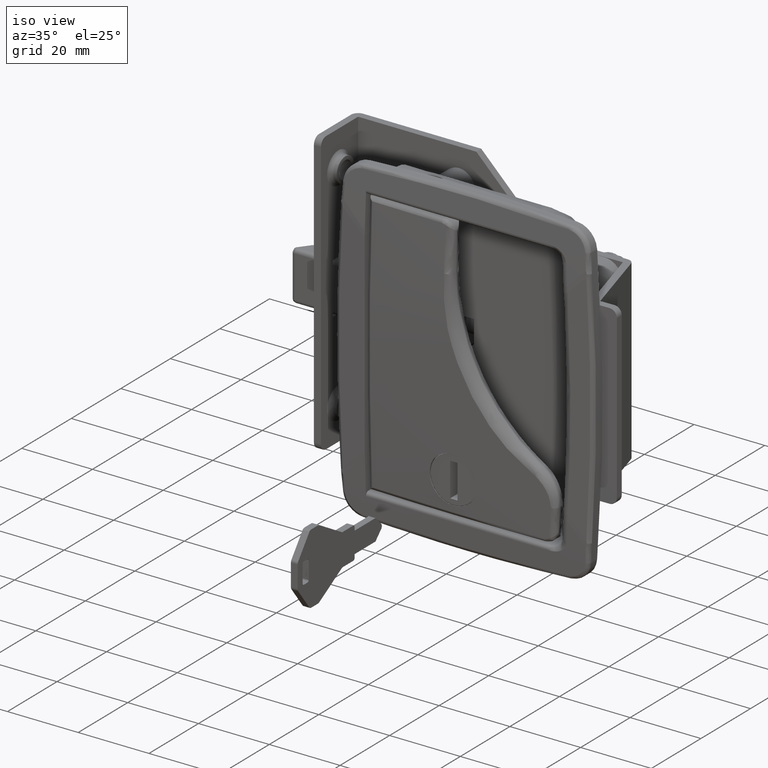
[diagram: clean part render]
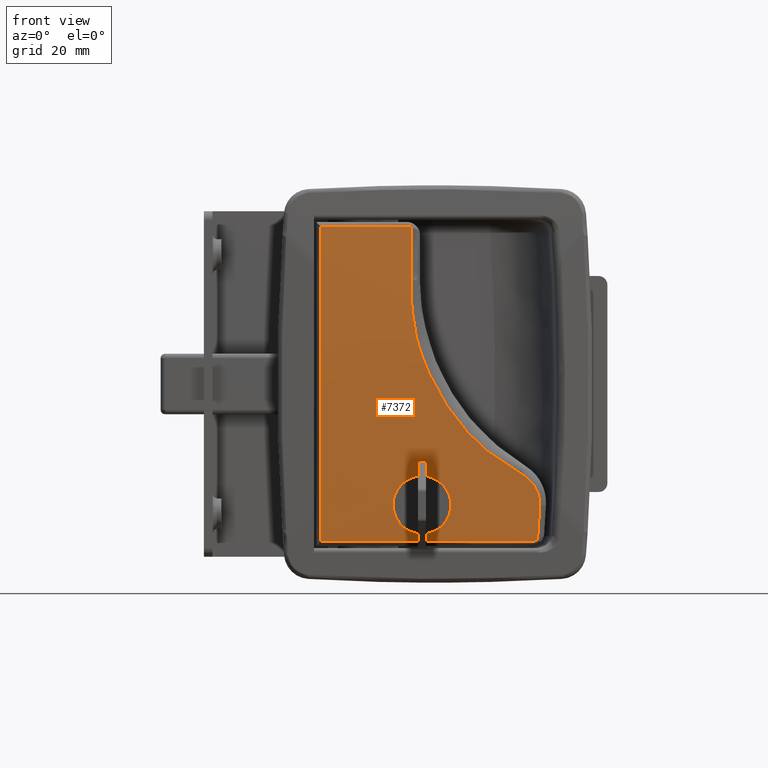
[diagram: tour spotlight — one face highlighted and labeled with its STEP entity id]
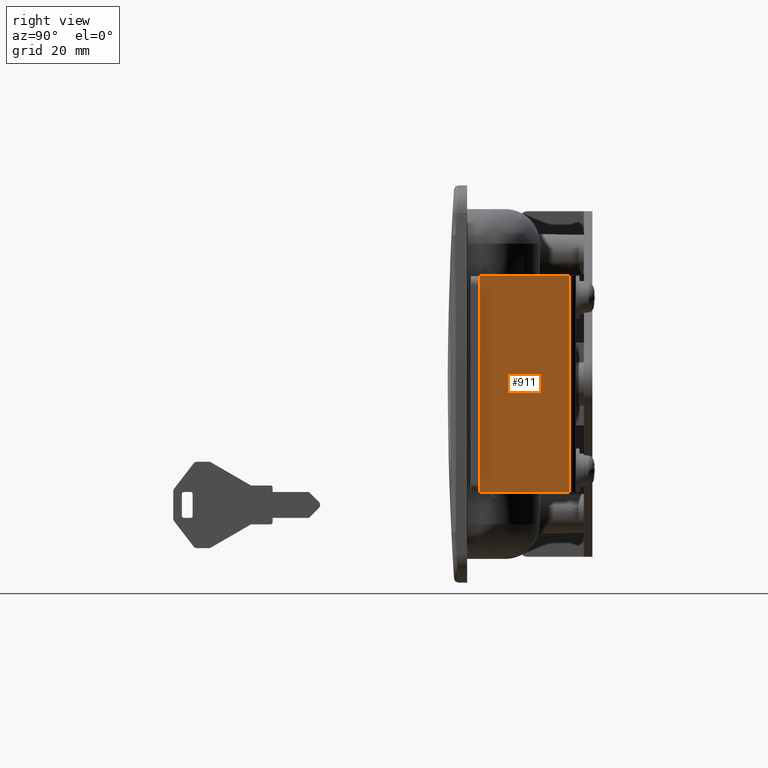
[diagram: tour spotlight — one face highlighted and labeled with its STEP entity id]
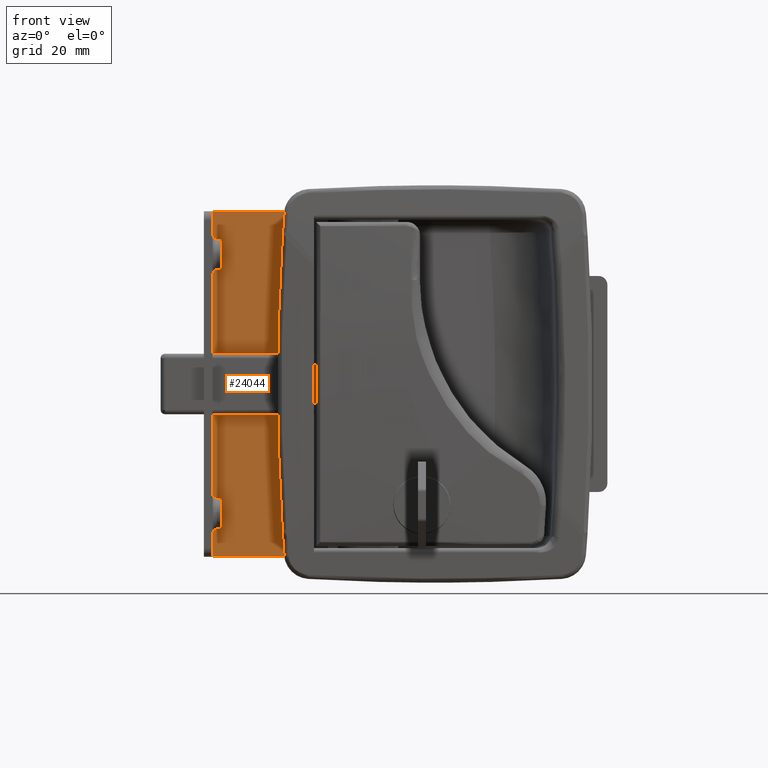
[diagram: tour spotlight — one face highlighted and labeled with its STEP entity id]
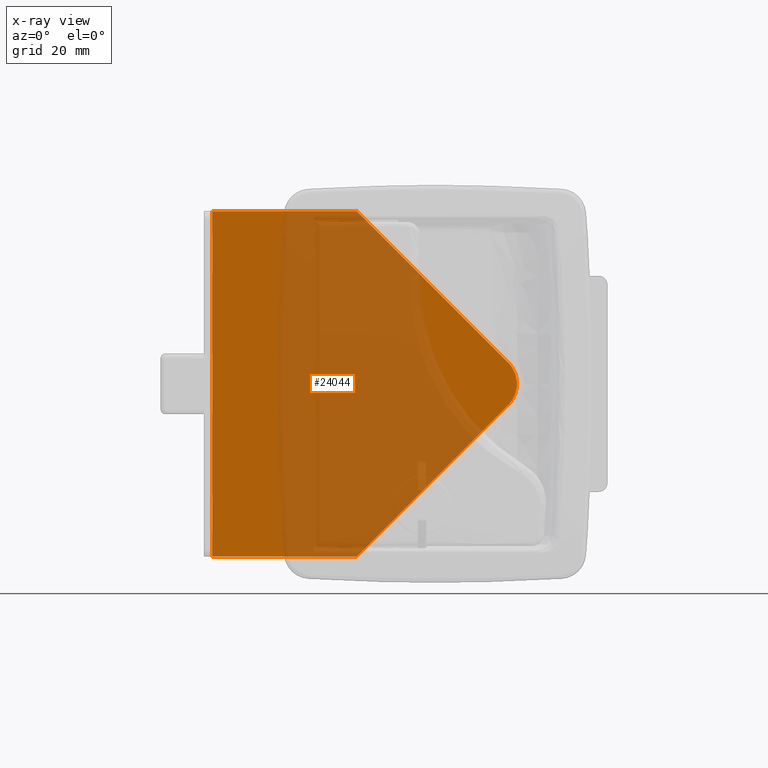
[diagram: x-ray of the same camera — body ghosted, this tour face saturated]
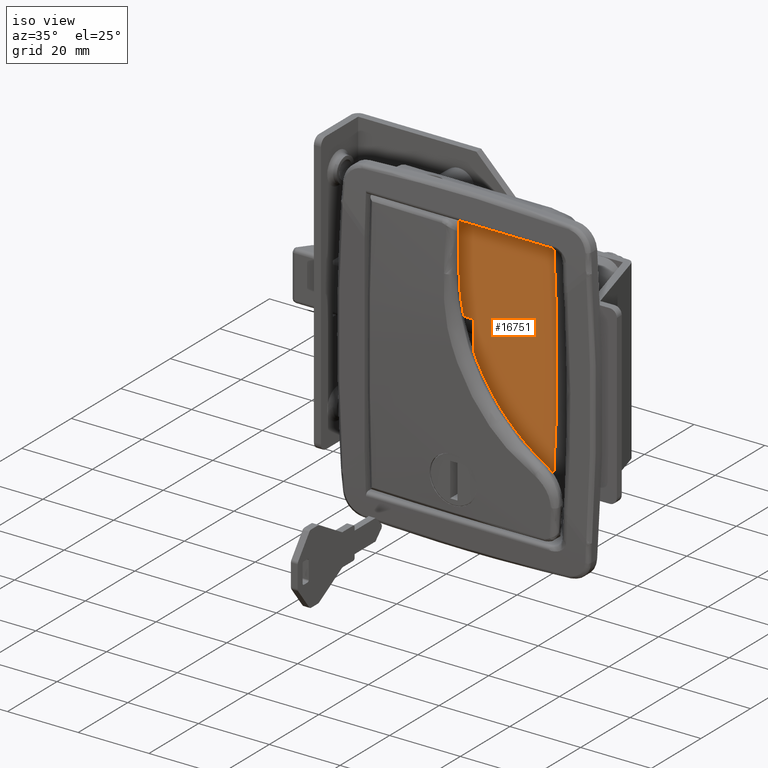
[diagram: tour spotlight — one face highlighted and labeled with its STEP entity id]
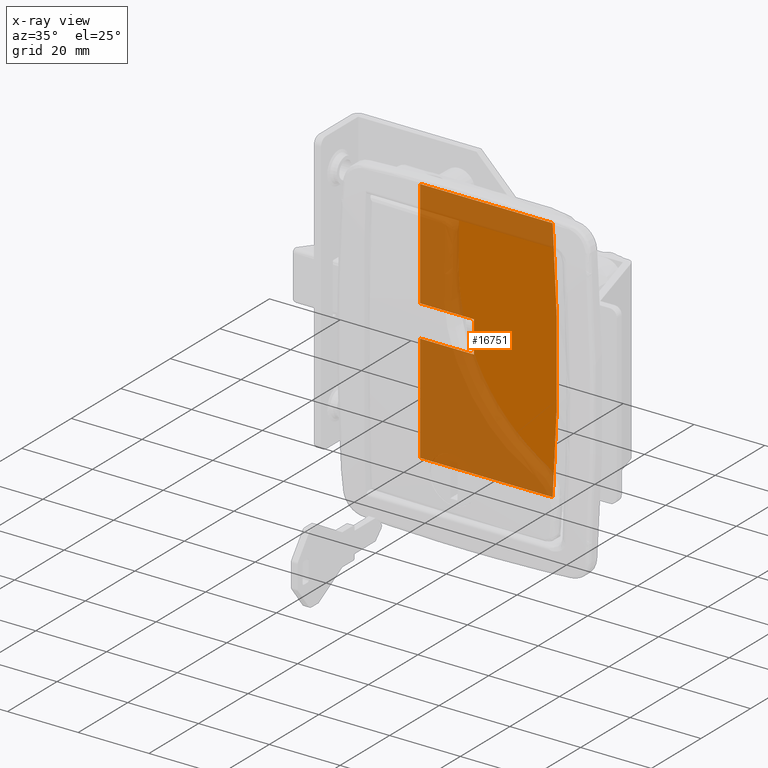
[diagram: x-ray of the same camera — body ghosted, this tour face saturated]
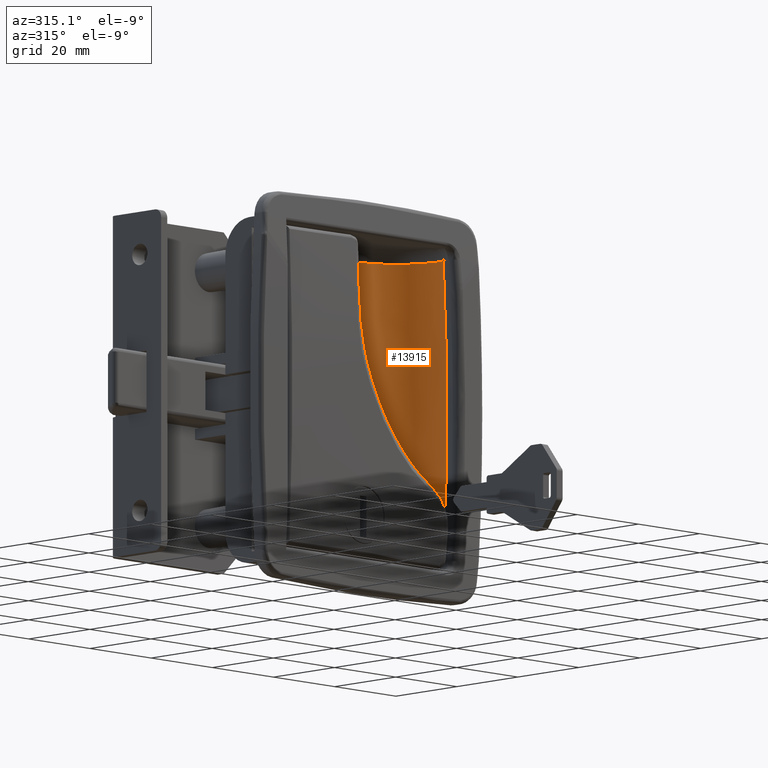
[diagram: tour spotlight — one face highlighted and labeled with its STEP entity id]
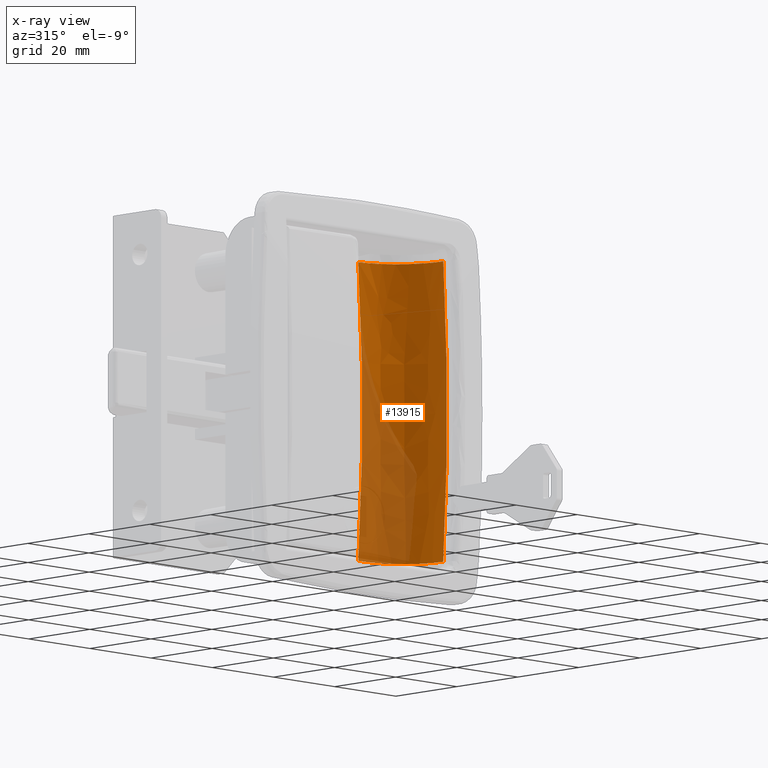
[diagram: x-ray of the same camera — body ghosted, this tour face saturated]
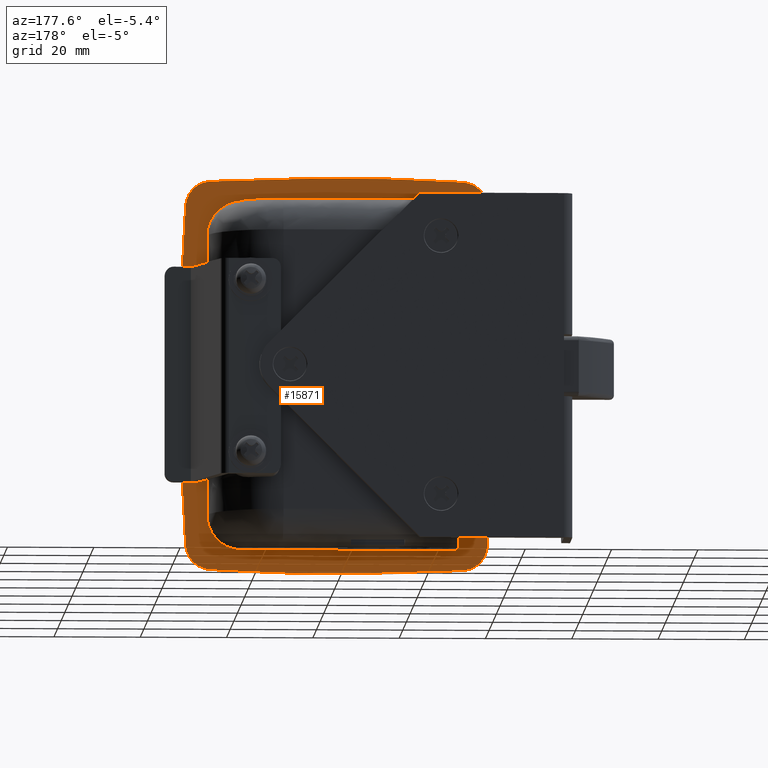
[diagram: tour spotlight — one face highlighted and labeled with its STEP entity id]
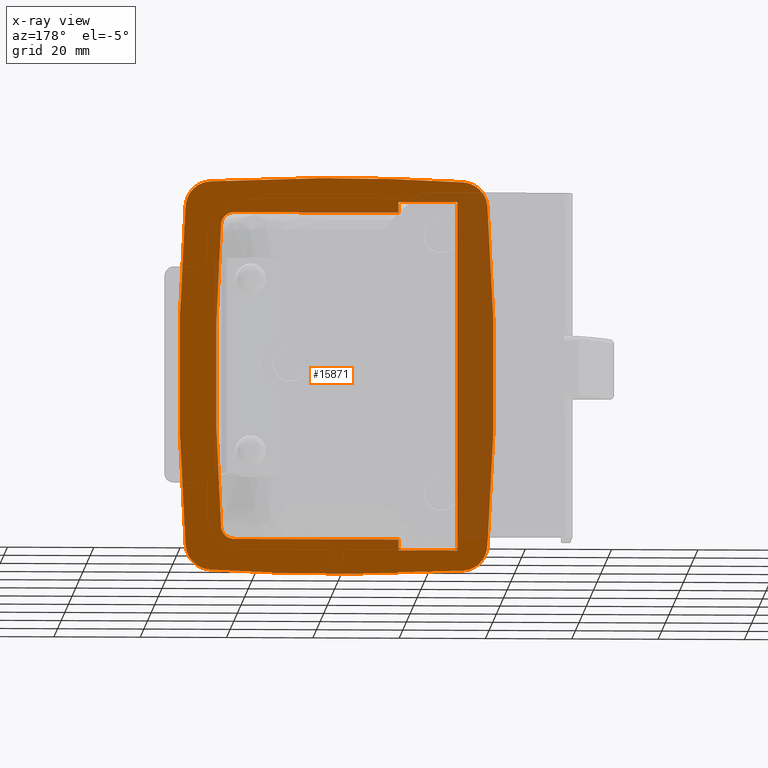
[diagram: x-ray of the same camera — body ghosted, this tour face saturated]
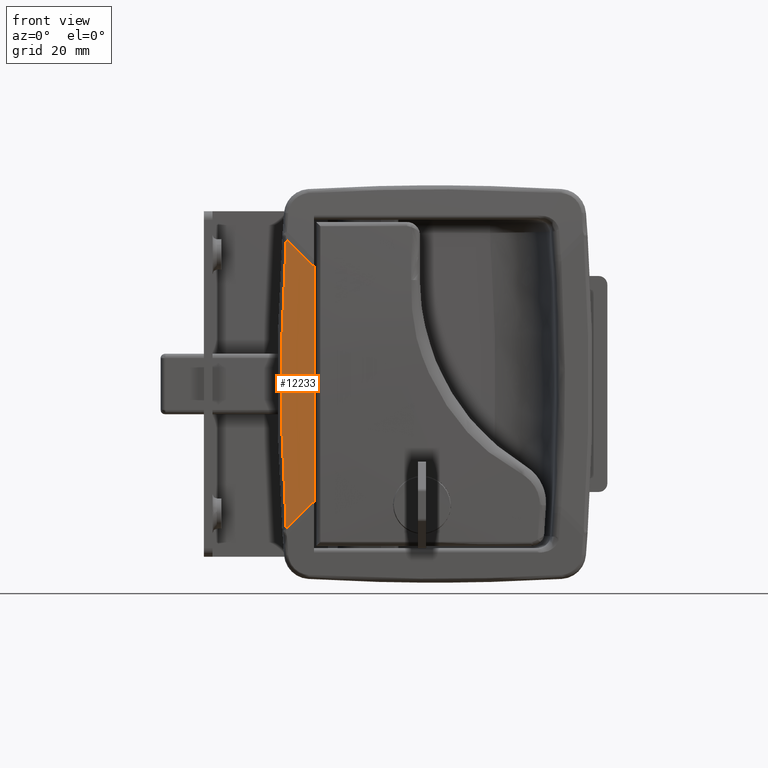
[diagram: tour spotlight — one face highlighted and labeled with its STEP entity id]
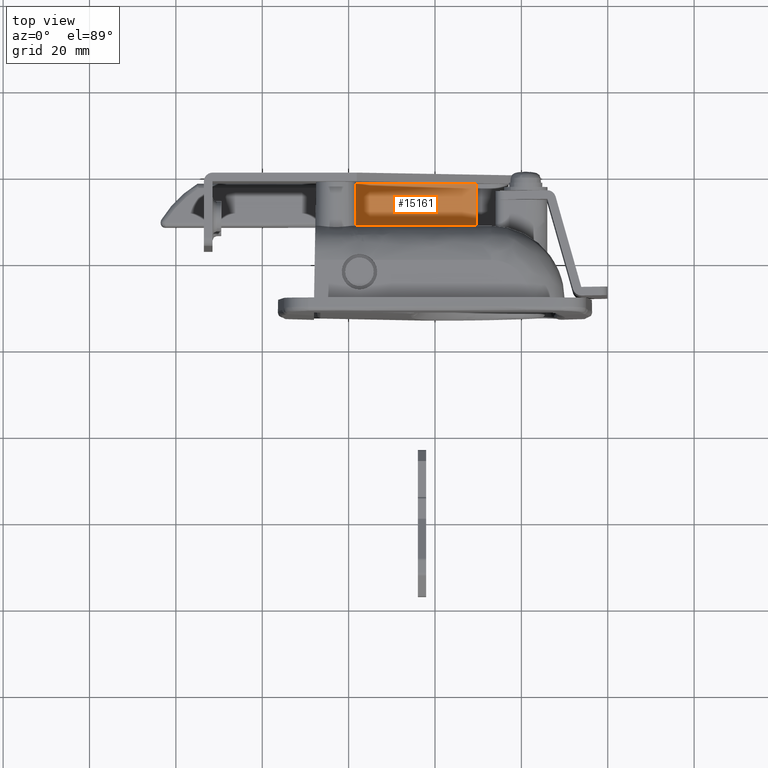
[diagram: tour spotlight — one face highlighted and labeled with its STEP entity id]
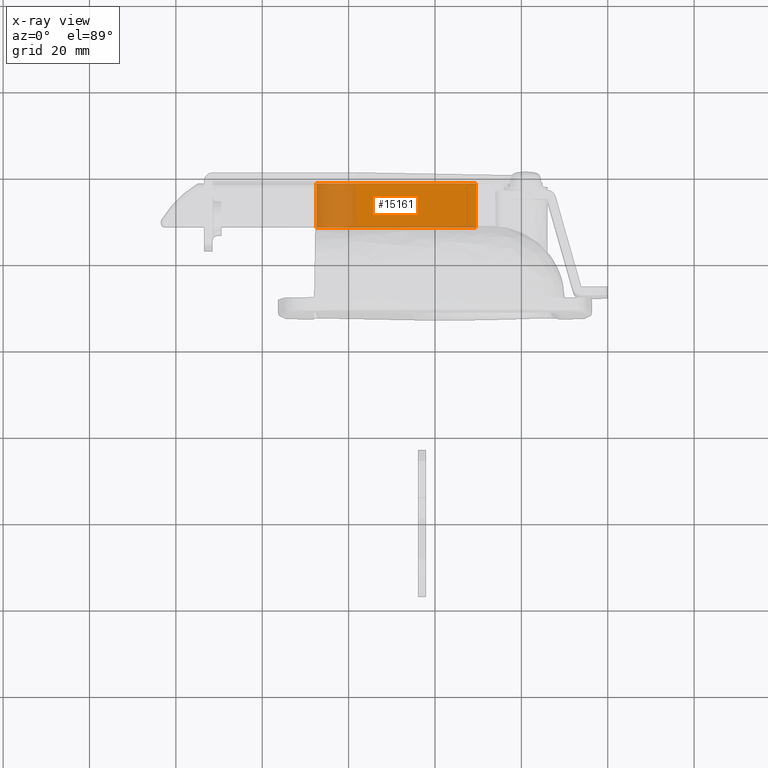
[diagram: x-ray of the same camera — body ghosted, this tour face saturated]
A machine part: a face-by-face anatomy tour. The part has 505 B-rep faces; the first image is the clean iso view, then the 8 largest visible faces are spotlighted one at a time (largest first), each with its STEP entity span.

Face 1 — front view, entity #7372. In plain terms, the highlighted face is a freeform B-spline surface patch.
Definition (entity closure, byte-faithful):
#4847=CARTESIAN_POINT('',(1.883605682501557,-32.738587444618027,-32.586053443396487));
#4848=VERTEX_POINT('',#4847);
#4854=CARTESIAN_POINT('',(-2.997046436209854,-33.169426645539609,-21.300496007397861));
#4855=VERTEX_POINT('',#4854);
#4856=CARTESIAN_POINT('',(1.883605682501557,-32.738587444618027,-32.586053443396487));
#4857=CARTESIAN_POINT('',(2.216947434355369,-32.754210903075602,-32.231547717192363));
#4858=CARTESIAN_POINT('',(2.756719967893735,-32.785227204358961,-31.514683651752708));
#4859=CARTESIAN_POINT('',(3.397431807278860,-32.841652334836112,-30.173954018588329));
#4860=CARTESIAN_POINT('',(3.723283145872869,-32.900523594947003,-28.738348178836489));
#4861=CARTESIAN_POINT('',(3.704996656832767,-32.955923386203963,-27.352542710147080));
#4862=CARTESIAN_POINT('',(3.466777105837210,-33.004437994821643,-26.115132473367041));
#4863=CARTESIAN_POINT('',(2.998372476318899,-33.051168976981039,-24.897584848178361));
#4864=CARTESIAN_POINT('',(2.141657236943931,-33.099248349146791,-23.604703015122880));
#4865=CARTESIAN_POINT('',(1.059616074081824,-33.134554844714927,-22.606707987101100));
#4866=CARTESIAN_POINT('',(-0.063553510655522,-33.156174959851690,-21.946176485373879));
#4867=CARTESIAN_POINT('',(-1.354167647668354,-33.170586845525769,-21.447739900113479));
#4868=CARTESIAN_POINT('',(-2.347864859627395,-33.172195793490502,-21.300959846860462));
#4869=CARTESIAN_POINT('',(-2.997046436209854,-33.169426645539609,-21.300496007397861));
#4870=B_SPLINE_CURVE_WITH_KNOTS('',3,(#4856,#4857,#4858,#4859,#4860,#4861,#4862,#4863,#4864,#4865,#4866,#4867,#4868,#4869),.UNSPECIFIED.,.F.,.U.,(4,1,1,1,1,1,1,1,1,1,1,4),(0.000000204590833,1.460585712762033,2.677779705364326,4.442690332355472,5.842468501941101,6.816218438370617,8.215910609356907,9.737377702158373,11.441433433979570,12.597768618296080,13.632366547259730,15.579829439401291),.UNSPECIFIED.);
#4871=EDGE_CURVE('',#4848,#4855,#4870,.T.);
#4873=CARTESIAN_POINT('',(-9.699990505499004,-32.872592089603877,-27.997993104649801));
#4874=VERTEX_POINT('',#4873);
#4875=CARTESIAN_POINT('',(-2.997046436209854,-33.169426645539609,-21.300496007397861));
#4876=CARTESIAN_POINT('',(-3.463177123004033,-33.167431101249718,-21.300483740763038));
#4877=CARTESIAN_POINT('',(-4.230858019200177,-33.160919809394478,-21.381013508475281));
#4878=CARTESIAN_POINT('',(-5.367757261696073,-33.143161582281913,-21.702981712913250));
#4879=CARTESIAN_POINT('',(-6.441145764536183,-33.118579101669340,-22.202201963826770));
#4880=CARTESIAN_POINT('',(-7.419760700235589,-33.085722708288792,-22.918228319080640));
#4881=CARTESIAN_POINT('',(-8.329723318385835,-33.043596036298737,-23.873154443315610));
#4882=CARTESIAN_POINT('',(-9.000759564168334,-32.998907295163832,-24.917632713974889));
#4883=CARTESIAN_POINT('',(-9.555439155723468,-32.939014677939667,-26.354324977697789));
#4884=CARTESIAN_POINT('',(-9.700151602860538,-32.897820512439637,-27.367810431038031));
#4885=CARTESIAN_POINT('',(-9.699990505499004,-32.872592089603877,-27.997993104649801));
#4886=B_SPLINE_CURVE_WITH_KNOTS('',3,(#4875,#4876,#4877,#4878,#4879,#4880,#4881,#4882,#4883,#4884,#4885),.UNSPECIFIED.,.F.,.U.,(4,1,1,1,1,1,1,1,4),(0.000000093775792,1.398391189435410,2.303262462558736,3.537178298672981,4.935575766340302,5.922686202487183,7.485619119637429,8.637267246070474,10.529223792871459),.UNSPECIFIED.);
#4887=EDGE_CURVE('',#4855,#4874,#4886,.T.);
#4889=CARTESIAN_POINT('',(-3.000000000000004,-32.632970185214504,-34.699999999999989));
#4890=VERTEX_POINT('',#4889);
#4891=CARTESIAN_POINT('',(-9.699990505499004,-32.872592089603877,-27.997993104649801));
#4892=CARTESIAN_POINT('',(-9.700302210632177,-32.847363877798507,-28.628119935211910));
#4893=CARTESIAN_POINT('',(-9.556087589761093,-32.807404147905260,-29.641675068295061));
#4894=CARTESIAN_POINT('',(-9.001836261817926,-32.752249969531412,-31.078620988423118));
#4895=CARTESIAN_POINT('',(-8.331273369225826,-32.713290397958133,-32.123492456046783));
#4896=CARTESIAN_POINT('',(-7.383874153317270,-32.677497090346712,-33.118886400861363));
#4897=CARTESIAN_POINT('',(-6.328150201184164,-32.651845377916082,-33.872546113545638));
#4898=CARTESIAN_POINT('',(-4.809234182089721,-32.632247824522850,-34.524526104210153));
#4899=CARTESIAN_POINT('',(-3.685479823924151,-32.630047700434638,-34.699679436861167));
#4900=CARTESIAN_POINT('',(-3.000000000000004,-32.632970185214504,-34.699999999999989));
#4901=B_SPLINE_CURVE_WITH_KNOTS('',3,(#4891,#4892,#4893,#4894,#4895,#4896,#4897,#4898,#4899,#4900),.UNSPECIFIED.,.F.,.U.,(4,1,1,1,1,1,1,4),(0.000000094639113,1.891834527330417,3.043395157074755,4.606217668372403,5.593261097171954,7.156082435245111,8.472147724083570,10.528489304875871),.UNSPECIFIED.);
#4902=EDGE_CURVE('',#4874,#4890,#4901,.T.);
#4969=CARTESIAN_POINT('',(-3.000000000000004,-32.632970185214504,-34.699999999999989));
#4970=CARTESIAN_POINT('',(-2.600903874214759,-32.634690466819073,-34.699847252384252));
#4971=CARTESIAN_POINT('',(-1.660212392790367,-32.642114856777177,-34.615330752322862));
#4972=CARTESIAN_POINT('',(-0.288667313635958,-32.664996551337623,-34.190982320590983));
#4973=CARTESIAN_POINT('',(0.948202667419215,-32.699312102905601,-33.466623380713301));
#4974=CARTESIAN_POINT('',(1.610566163382885,-32.725771019518767,-32.876857691946533));
#4975=CARTESIAN_POINT('',(1.883605682501557,-32.738587444618027,-32.586053443396487));
#4976=B_SPLINE_CURVE_WITH_KNOTS('',3,(#4969,#4970,#4971,#4972,#4973,#4974,#4975),.UNSPECIFIED.,.F.,.U.,(4,1,1,1,4),(0.000000028120062,1.197315739248636,2.822231464825666,4.276130993017010,5.473446704145368),.UNSPECIFIED.);
#4977=EDGE_CURVE('',#4890,#4848,#4976,.T.);
#5063=CARTESIAN_POINT('',(23.752741406774948,-32.172231486536049,-35.957199908880852));
#5064=VERTEX_POINT('',#5063);
#5075=CARTESIAN_POINT('',(22.328161028263800,-32.188334398340807,-36.552217453505001));
#5076=VERTEX_POINT('',#5075);
#5077=CARTESIAN_POINT('',(22.328161028263800,-32.188334398340807,-36.552217453505001));
#5078=CARTESIAN_POINT('',(22.608776421866629,-32.179344224333050,-36.552669457913773));
#5079=CARTESIAN_POINT('',(23.136704753114529,-32.168081125293376,-36.439255553984893));
#5080=CARTESIAN_POINT('',(23.578802145719759,-32.169070152838643,-36.133541602448673));
#5081=CARTESIAN_POINT('',(23.752741406774948,-32.172231486536049,-35.957199908880852));
#5082=B_SPLINE_CURVE_WITH_KNOTS('',3,(#5077,#5078,#5079,#5080,#5081),.UNSPECIFIED.,.F.,.U.,(4,1,4),(0.000000052360078,0.842100346507110,1.585153439383162),.UNSPECIFIED.);
#5083=EDGE_CURVE('',#5076,#5064,#5082,.T.);
#5323=CARTESIAN_POINT('',(24.263032300895251,-32.517256435528147,-28.038909909496549));
#5324=VERTEX_POINT('',#5323);
#5336=CARTESIAN_POINT('',(23.752741406774948,-32.172231486536049,-35.957199908880852));
#5337=CARTESIAN_POINT('',(23.815053020576279,-32.214370927995773,-35.077740266143003));
#5338=CARTESIAN_POINT('',(23.939662336111809,-32.298640402609358,-33.319017334138792));
#5339=CARTESIAN_POINT('',(24.109765063294351,-32.413649595474382,-30.679515047571581));
#5340=CARTESIAN_POINT('',(24.211946535633341,-32.482723062360080,-28.919054527123340));
#5341=CARTESIAN_POINT('',(24.263032300895251,-32.517256435528147,-28.038909909496549));
#5342=B_SPLINE_CURVE_WITH_KNOTS('',3,(#5336,#5337,#5338,#5339,#5340,#5341),.UNSPECIFIED.,.F.,.U.,(4,1,1,4),(0.0,0.333404577563153,0.666734717207123,1.000000000000000),.UNSPECIFIED.);
#5343=EDGE_CURVE('',#5064,#5324,#5342,.T.);
#5408=CARTESIAN_POINT('',(19.884754278313149,-32.911509174029952,-20.691480908747501));
#5409=VERTEX_POINT('',#5408);
#5422=CARTESIAN_POINT('',(24.263032300895251,-32.517256435528147,-28.038909909496549));
#5423=CARTESIAN_POINT('',(24.268066088877589,-32.522133300693604,-27.912477154066469));
#5424=CARTESIAN_POINT('',(24.278144213111659,-32.531897250463139,-27.659346704205539));
#5425=CARTESIAN_POINT('',(24.265689899379439,-32.547281224877622,-27.278563381261630));
#5426=CARTESIAN_POINT('',(24.233047605431100,-32.563197583660958,-26.897125522581241));
#5427=CARTESIAN_POINT('',(24.178237307882529,-32.579695618783333,-26.514939434563090));
#5428=CARTESIAN_POINT('',(24.101794838722491,-32.596754962924173,-26.132015620968630));
#5429=CARTESIAN_POINT('',(23.943152727440861,-32.625211720159221,-25.512240172988658));
#5430=CARTESIAN_POINT('',(23.636954470357740,-32.665916021848702,-24.672876194868699));
#5431=CARTESIAN_POINT('',(23.135906044057130,-32.714310968310357,-23.757329140000540));
#5432=CARTESIAN_POINT('',(22.582661787970231,-32.758095744110193,-22.986517431727219));
#5433=CARTESIAN_POINT('',(22.015325984521340,-32.797139141013282,-22.340362312969731));
#5434=CARTESIAN_POINT('',(21.375002855316470,-32.835898765371390,-21.740608873749551));
#5435=CARTESIAN_POINT('',(20.665224724648731,-32.874460328618973,-21.181783297281729));
#5436=CARTESIAN_POINT('',(20.147976577183570,-32.899014040735153,-20.856840817578082));
#5437=CARTESIAN_POINT('',(19.884754278313149,-32.911509174029952,-20.691480908747501));
#5438=B_SPLINE_CURVE_WITH_KNOTS('',3,(#5422,#5423,#5424,#5425,#5426,#5427,#5428,#5429,#5430,#5431,#5432,#5433,#5434,#5435,#5436,#5437),.UNSPECIFIED.,.F.,.U.,(4,1,1,1,1,1,1,1,1,1,1,1,1,4),(0.0,0.042187703590730,0.084463811235066,0.126965263177890,0.169826840260721,0.213179964971625,0.257151652788024,0.383177306363811,0.510016368162729,0.604074454124557,0.699230465725967,0.796384341739987,0.896382071321326,1.0),.UNSPECIFIED.);
#5439=EDGE_CURVE('',#5324,#5409,#5438,.T.);
#5566=CARTESIAN_POINT('',(-5.515759312320920,-33.064129629326047,24.074985673351701));
#5567=VERTEX_POINT('',#5566);
#5580=CARTESIAN_POINT('',(19.884754278313149,-32.911509174029952,-20.691480908747501));
#5581=CARTESIAN_POINT('',(19.273731688910999,-32.939109766915657,-20.324711493093261));
#5582=CARTESIAN_POINT('',(18.179646792935081,-32.988530839589721,-19.667981472089451));
#5583=CARTESIAN_POINT('',(16.004469279013030,-33.078989585897837,-18.319380589221900));
#5584=CARTESIAN_POINT('',(13.912534557335469,-33.159271193527047,-16.921311383588701));
#5585=CARTESIAN_POINT('',(11.862246846535660,-33.231988383573380,-15.352209354575340));
#5586=CARTESIAN_POINT('',(10.407441465566739,-33.280967443854138,-14.122109862718510));
#5587=CARTESIAN_POINT('',(9.016532899769741,-33.326036186187281,-12.786131707908149));
#5588=CARTESIAN_POINT('',(6.944765760589167,-33.388782687527787,-10.587898221353170));
#5589=CARTESIAN_POINT('',(4.311527315107466,-33.454001832856697,-7.396371196546682));
#5590=CARTESIAN_POINT('',(1.432523503062573,-33.498063055736033,-3.095170518787797));
#5591=CARTESIAN_POINT('',(-0.652949233342726,-33.503238700319208,0.803672949413746));
#5592=CARTESIAN_POINT('',(-2.134944490073639,-33.486405571416093,4.158714828704500));
#5593=CARTESIAN_POINT('',(-3.178471740016067,-33.460535388117648,6.938485695726702));
#5594=CARTESIAN_POINT('',(-4.056657419989403,-33.422977401128243,9.704647745721632));
#5595=CARTESIAN_POINT('',(-4.738442722925301,-33.374500630759911,12.478731419439001));
#5596=CARTESIAN_POINT('',(-5.163943141177215,-33.315868094340317,15.296429907999769));
#5597=CARTESIAN_POINT('',(-5.399682922477557,-33.247015402476990,18.094703634360080));
#5598=CARTESIAN_POINT('',(-5.502247646671584,-33.164148167008442,21.056354657291131));
#5599=CARTESIAN_POINT('',(-5.510934395520212,-33.099845516276602,22.997054655628109));
#5600=CARTESIAN_POINT('',(-5.515759312320920,-33.064129629326047,24.074985673351701));
#5601=B_SPLINE_CURVE_WITH_KNOTS('',3,(#5580,#5581,#5582,#5583,#5584,#5585,#5586,#5587,#5588,#5589,#5590,#5591,#5592,#5593,#5594,#5595,#5596,#5597,#5598,#5599,#5600),.UNSPECIFIED.,.F.,.U.,(4,1,1,1,1,1,1,1,1,1,1,1,1,1,1,1,1,1,4),(0.0,0.039443726757867,0.070627152637692,0.141643695097989,0.178548031817337,0.213431732467429,0.246989212196407,0.285182398587448,0.380499191660142,0.475461949838750,0.570995986901013,0.624629641236967,0.678229402937408,0.735142389946056,0.785075388601778,0.836072265549265,0.892607288375809,0.940350422509151,1.0),.UNSPECIFIED.);
#5602=EDGE_CURVE('',#5409,#5567,#5601,.T.);
#5678=CARTESIAN_POINT('',(-5.515759312727131,-32.536989481026303,36.288617175466698));
#5679=VERTEX_POINT('',#5678);
#5702=CARTESIAN_POINT('',(-5.515759312320920,-33.064129629326047,24.074985673351701));
#5703=CARTESIAN_POINT('',(-5.515759312358564,-32.923972665772688,28.147627109144992));
#5704=CARTESIAN_POINT('',(-5.515759312396210,-32.748250350042809,32.219044583142711));
#5705=CARTESIAN_POINT('',(-5.515759312727131,-32.536989481026303,36.288617175466698));
#5706=QUASI_UNIFORM_CURVE('',3,(#5702,#5703,#5704,#5705),.UNSPECIFIED.,.F.,.U.);
#5707=EDGE_CURVE('',#5567,#5679,#5706,.T.);
#5883=CARTESIAN_POINT('',(-6.509298998569390,-32.514699261707342,36.552417739628048));
#5884=VERTEX_POINT('',#5883);
#5896=CARTESIAN_POINT('',(-5.515759312727131,-32.536989481026303,36.288617175466698));
#5897=CARTESIAN_POINT('',(-5.656731208135356,-32.531691674413693,36.369246463591153));
#5898=CARTESIAN_POINT('',(-5.978609446030909,-32.522018908170082,36.504308893644662));
#5899=CARTESIAN_POINT('',(-6.325158250696687,-32.516409254283658,36.552514207107443));
#5900=CARTESIAN_POINT('',(-6.509298998569390,-32.514699261707342,36.552417739628048));
#5901=B_SPLINE_CURVE_WITH_KNOTS('',3,(#5896,#5897,#5898,#5899,#5900),.UNSPECIFIED.,.F.,.U.,(4,1,4),(0.000000017964880,0.487458474685483,1.039886297916770),.UNSPECIFIED.);
#5902=EDGE_CURVE('',#5679,#5884,#5901,.T.);
#5925=CARTESIAN_POINT('',(-26.537911301859801,-32.041094010310943,36.552417739628048));
#5926=VERTEX_POINT('',#5925);
#5927=CARTESIAN_POINT('',(-6.509298998569390,-32.514699261707250,36.552417739628048));
#5928=CARTESIAN_POINT('',(-16.526998809343674,-32.421413378856514,36.552417739628048));
#5929=CARTESIAN_POINT('',(-26.537911301859801,-32.041094010310943,36.552417739628048));
#5937=(BOUNDED_CURVE()B_SPLINE_CURVE(2,(#5927,#5928,#5929),.UNSPECIFIED.,.F.,.U.)CURVE()GEOMETRIC_REPRESENTATION_ITEM()QUASI_UNIFORM_CURVE()RATIONAL_B_SPLINE_CURVE((1.0,0.999897324571619,1.0))REPRESENTATION_ITEM(''));
#5938=EDGE_CURVE('',#5884,#5926,#5937,.T.);
#6023=CARTESIAN_POINT('',(-26.537911301859801,-32.041104490613499,-36.552217453505001));
#6024=VERTEX_POINT('',#6023);
#6025=CARTESIAN_POINT('',(-26.537911301859801,-32.041104490613499,-36.552217453505001));
#6026=CARTESIAN_POINT('',(-2.107449712999882,-32.969229433499777,-36.552217453504994));
#6027=CARTESIAN_POINT('',(22.328161028263800,-32.188334398340807,-36.552217453505001));
#6035=(BOUNDED_CURVE()B_SPLINE_CURVE(2,(#6025,#6026,#6027),.UNSPECIFIED.,.F.,.U.)CURVE()GEOMETRIC_REPRESENTATION_ITEM()QUASI_UNIFORM_CURVE()RATIONAL_B_SPLINE_CURVE((1.0,0.999388985896977,1.0))REPRESENTATION_ITEM(''));
#6036=EDGE_CURVE('',#6024,#5076,#6035,.T.);
#6097=CARTESIAN_POINT('',(-26.537911301859801,-32.041094010310943,36.552417739628048));
#6098=CARTESIAN_POINT('',(-26.537911301859804,-33.953759683919117,0.000100417261763));
#6099=CARTESIAN_POINT('',(-26.537911301859801,-32.041104490613499,-36.552217453505001));
#6107=(BOUNDED_CURVE()B_SPLINE_CURVE(2,(#6097,#6098,#6099),.UNSPECIFIED.,.F.,.U.)CURVE()GEOMETRIC_REPRESENTATION_ITEM()QUASI_UNIFORM_CURVE()RATIONAL_B_SPLINE_CURVE((1.0,0.998633765704525,1.0))REPRESENTATION_ITEM(''));
#6108=EDGE_CURVE('',#5926,#6024,#6107,.T.);
#7331=CARTESIAN_POINT('',(-29.107337695828242,-31.738509266052482,-40.196356429171409));
#7332=CARTESIAN_POINT('',(-15.613095196133065,-32.299779868234438,-40.218266992811017));
#7333=CARTESIAN_POINT('',(12.354237942354871,-32.383998677217157,-40.220207757415636));
#7334=CARTESIAN_POINT('',(26.805160693514267,-31.830631799892078,-40.197164702969779));
#7335=CARTESIAN_POINT('',(-29.116596505749694,-32.430866866994478,-28.162921525186327));
#7336=CARTESIAN_POINT('',(-15.618353485820551,-32.992561901426583,-28.180356298874500));
#7337=CARTESIAN_POINT('',(12.357278031425761,-33.076805699548302,-28.182297639336671));
#7338=CARTESIAN_POINT('',(26.812485486607134,-32.522978954269689,-28.164386481635294));
#7339=CARTESIAN_POINT('',(-29.116596505749694,-33.357785075085999,12.060373625779189));
#7340=CARTESIAN_POINT('',(-15.618353485820551,-33.919825373970532,12.057921483626719));
#7341=CARTESIAN_POINT('',(12.357278031425761,-34.004069172092258,12.055980143164559));
#7342=CARTESIAN_POINT('',(26.812485486607134,-33.449846597505527,12.056714424900974));
#7343=CARTESIAN_POINT('',(-29.066052794693835,-31.740335569540790,40.194506573292180));
#7344=CARTESIAN_POINT('',(-15.589648571692793,-32.300864258816254,40.202521015059880));
#7345=CARTESIAN_POINT('',(12.340682236803008,-32.384971641652392,40.200582818194270));
#7346=CARTESIAN_POINT('',(26.772499542898036,-31.832336172646961,40.189321017877482));
#7354=(BOUNDED_SURFACE()B_SPLINE_SURFACE(2,2,((#7331,#7335,#7339,#7343),(#7332,#7336,#7340,#7344),(#7333,#7337,#7341,#7345),(#7334,#7338,#7342,#7346)),.UNSPECIFIED.,.F.,.F.,.U.)B_SPLINE_SURFACE_WITH_KNOTS((3,1,3),(3,1,3),(12.699228702974320,39.707471505732443,68.626667560148235),(18.270483048820498,42.375764206347000,98.733762709236146),.UNSPECIFIED.)GEOMETRIC_REPRESENTATION_ITEM()RATIONAL_B_SPLINE_SURFACE(((1.000669203269717,1.000372486428063,1.000372486428063,1.001994404516362),(1.000296716841655,1.0,1.0,1.001621918088300),(1.000296716841655,1.0,1.0,1.001621918088300),(1.000723778149719,1.000427061308065,1.000427061308065,1.002048979396364)))REPRESENTATION_ITEM('')SURFACE());
#7355=ORIENTED_EDGE('',*,*,#6036,.T.);
#7356=ORIENTED_EDGE('',*,*,#5083,.T.);
#7357=ORIENTED_EDGE('',*,*,#5343,.T.);
#7358=ORIENTED_EDGE('',*,*,#5439,.T.);
#7359=ORIENTED_EDGE('',*,*,#5602,.T.);
#7360=ORIENTED_EDGE('',*,*,#5707,.T.);
#7361=ORIENTED_EDGE('',*,*,#5902,.T.);
#7362=ORIENTED_EDGE('',*,*,#5938,.T.);
#7363=ORIENTED_EDGE('',*,*,#6108,.T.);
#7364=EDGE_LOOP('',(#7355,#7356,#7357,#7358,#7359,#7360,#7361,#7362,#7363));
#7365=FACE_OUTER_BOUND('',#7364,.T.);
#7366=ORIENTED_EDGE('',*,*,#4977,.F.);
#7367=ORIENTED_EDGE('',*,*,#4902,.F.);
#7368=ORIENTED_EDGE('',*,*,#4887,.F.);
#7369=ORIENTED_EDGE('',*,*,#4871,.F.);
#7370=EDGE_LOOP('',(#7366,#7367,#7368,#7369));
#7371=FACE_BOUND('',#7370,.T.);
#7372=ADVANCED_FACE('',(#7365,#7371),#7354,.T.);

Face 2 — right view, entity #911. In plain terms, the highlighted face is a freeform B-spline surface patch.
Definition (entity closure, byte-faithful):
#792=CARTESIAN_POINT('',(33.876537531617899,-26.197112460799701,25.000200000000000));
#793=VERTEX_POINT('',#792);
#799=CARTESIAN_POINT('',(27.924784517810650,-5.277412373466921,25.000200000000000));
#800=VERTEX_POINT('',#799);
#801=CARTESIAN_POINT('',(33.876537531617899,-26.197112460799701,25.000200000000000));
#802=CARTESIAN_POINT('',(27.924784517810650,-5.277412373466921,25.000200000000000));
#803=QUASI_UNIFORM_CURVE('',1,(#801,#802),.UNSPECIFIED.,.F.,.U.);
#804=EDGE_CURVE('',#793,#800,#803,.T.);
#839=CARTESIAN_POINT('',(27.924784517810650,-5.277412373466921,-25.0));
#840=VERTEX_POINT('',#839);
#851=CARTESIAN_POINT('',(33.876537531617899,-26.197112460799701,-25.0));
#852=VERTEX_POINT('',#851);
#853=CARTESIAN_POINT('',(33.876537531617899,-26.197112460799701,-25.0));
#854=CARTESIAN_POINT('',(27.924784517810650,-5.277412373466921,-25.0));
#855=QUASI_UNIFORM_CURVE('',1,(#853,#854),.UNSPECIFIED.,.F.,.U.);
#856=EDGE_CURVE('',#852,#840,#855,.T.);
#892=CARTESIAN_POINT('',(34.173827750734318,-27.242052028753069,-27.497509893089909));
#893=CARTESIAN_POINT('',(27.627494298694248,-4.232472805513554,-27.497509893089909));
#894=CARTESIAN_POINT('',(34.173827750734318,-27.242052028753069,27.497711234199780));
#895=CARTESIAN_POINT('',(27.627494298694248,-4.232472805513554,27.497711234199780));
#896=B_SPLINE_SURFACE_WITH_KNOTS('',1,1,((#892,#894),(#893,#895)),.UNSPECIFIED.,.F.,.F.,.U.,(2,2),(2,2),(0.0,23.922692526048031),(0.0,54.995221127289703),.UNSPECIFIED.);
#897=ORIENTED_EDGE('',*,*,#804,.F.);
#898=CARTESIAN_POINT('',(33.876537531617899,-26.197112460799701,-25.0));
#899=CARTESIAN_POINT('',(33.876537531617899,-26.197112460799701,25.000200000000000));
#900=QUASI_UNIFORM_CURVE('',1,(#898,#899),.UNSPECIFIED.,.F.,.U.);
#901=EDGE_CURVE('',#852,#793,#900,.T.);
#902=ORIENTED_EDGE('',*,*,#901,.F.);
#903=ORIENTED_EDGE('',*,*,#856,.T.);
#904=CARTESIAN_POINT('',(27.924784517810650,-5.277412373466921,-25.0));
#905=CARTESIAN_POINT('',(27.924784517810650,-5.277412373466921,25.000200000000000));
#906=QUASI_UNIFORM_CURVE('',1,(#904,#905),.UNSPECIFIED.,.F.,.U.);
#907=EDGE_CURVE('',#840,#800,#906,.T.);
#908=ORIENTED_EDGE('',*,*,#907,.T.);
#909=EDGE_LOOP('',(#897,#902,#903,#908));
#910=FACE_OUTER_BOUND('',#909,.T.);
#911=ADVANCED_FACE('',(#910),#896,.T.);

Face 3 — front view, entity #24044. An x-ray twin of the same camera follows (body ghosted, this face saturated) — the face is partly hidden behind the body. In plain terms, the highlighted face is a freeform B-spline surface patch.
Definition (entity closure, byte-faithful):
#21546=CARTESIAN_POINT('',(-51.500000000000000,-2.0,7.200199999999900));
#21547=VERTEX_POINT('',#21546);
#21562=CARTESIAN_POINT('',(-51.500000000000000,-2.0,-7.200000000000000));
#21563=VERTEX_POINT('',#21562);
#21569=CARTESIAN_POINT('',(-51.500000000000000,-2.0,7.200199999999900));
#21570=CARTESIAN_POINT('',(-51.500000000000000,-2.0,-7.200000000000000));
#21571=QUASI_UNIFORM_CURVE('',1,(#21569,#21570),.UNSPECIFIED.,.F.,.U.);
#21572=EDGE_CURVE('',#21547,#21563,#21571,.T.);
#23980=CARTESIAN_POINT('',(-55.021488958276827,-2.0,43.996208332974817));
#23981=CARTESIAN_POINT('',(22.521773029822519,-2.0,43.996208332974817));
#23982=CARTESIAN_POINT('',(-55.021488958276827,-2.0,-43.996011909262442));
#23983=CARTESIAN_POINT('',(22.521773029822519,-2.0,-43.996011909262442));
#23984=B_SPLINE_SURFACE_WITH_KNOTS('',1,1,((#23980,#23982),(#23981,#23983)),.UNSPECIFIED.,.F.,.F.,.U.,(2,2),(2,2),(0.0,77.543261988099360),(0.0,87.992220242237266),.UNSPECIFIED.);
#23985=CARTESIAN_POINT('',(-51.500000000000000,-2.0,-40.0));
#23986=VERTEX_POINT('',#23985);
#23987=CARTESIAN_POINT('',(-51.500000000000000,-2.0,-40.0));
#23988=CARTESIAN_POINT('',(-51.500000000000000,-2.0,-7.200000000000000));
#23989=QUASI_UNIFORM_CURVE('',1,(#23987,#23988),.UNSPECIFIED.,.F.,.U.);
#23990=EDGE_CURVE('',#23986,#21563,#23989,.T.);
#23991=ORIENTED_EDGE('',*,*,#23990,.F.);
#23992=CARTESIAN_POINT('',(-18.100000000000001,-2.0,-40.0));
#23993=VERTEX_POINT('',#23992);
#23994=CARTESIAN_POINT('',(-18.100000000000001,-2.0,-40.0));
#23995=CARTESIAN_POINT('',(-51.500000000000000,-2.0,-40.0));
#23996=QUASI_UNIFORM_CURVE('',1,(#23994,#23995),.UNSPECIFIED.,.F.,.U.);
#23997=EDGE_CURVE('',#23993,#23986,#23996,.T.);
#23998=ORIENTED_EDGE('',*,*,#23997,.F.);
#23999=CARTESIAN_POINT('',(16.949985963325251,-2.0,-4.949714036794970));
#24000=VERTEX_POINT('',#23999);
#24001=CARTESIAN_POINT('',(16.949985963325251,-2.0,-4.949714036794970));
#24002=CARTESIAN_POINT('',(-18.100000000000001,-2.0,-40.0));
#24003=QUASI_UNIFORM_CURVE('',1,(#24001,#24002),.UNSPECIFIED.,.F.,.U.);
#24004=EDGE_CURVE('',#24000,#23993,#24003,.T.);
#24005=ORIENTED_EDGE('',*,*,#24004,.F.);
#24006=CARTESIAN_POINT('',(16.949999999999999,-2.0,4.949800000000000));
#24007=VERTEX_POINT('',#24006);
#24008=CARTESIAN_POINT('',(16.949985963325251,-2.0,-4.949714036794970));
#24009=CARTESIAN_POINT('',(17.314516943384600,-2.000000000000003,-4.585327892281759));
#24010=CARTESIAN_POINT('',(17.854435333548071,-1.999999999999999,-3.910458527533475));
#24011=CARTESIAN_POINT('',(18.409343973137702,-2.000000000000001,-2.872253609421156));
#24012=CARTESIAN_POINT('',(18.812647150752710,-2.0,-1.766813083759550));
#24013=CARTESIAN_POINT('',(19.024414056687419,-2.000000000000001,-0.546262193771496));
#24014=CARTESIAN_POINT('',(18.989843256173309,-2.0,0.861602985847742));
#24015=CARTESIAN_POINT('',(18.689258383389870,-1.999999999999991,2.239949976546889));
#24016=CARTESIAN_POINT('',(18.029361081919241,-2.000000000000030,3.680536136070887));
#24017=CARTESIAN_POINT('',(17.355052073006188,-1.999999999999971,4.544937090459984));
#24018=CARTESIAN_POINT('',(16.949999999999999,-2.0,4.949800000000000));
#24019=B_SPLINE_CURVE_WITH_KNOTS('',3,(#24008,#24009,#24010,#24011,#24012,#24013,#24014,#24015,#24016,#24017,#24018),.UNSPECIFIED.,.F.,.U.,(4,1,1,1,1,1,1,1,4),(0.000000106034692,1.546247696273627,2.577110354963821,3.522054191563387,5.068324403745724,6.270972123570255,7.731334601474294,9.277619652102249,10.995677809973751),.UNSPECIFIED.);
#24020=EDGE_CURVE('',#24000,#24007,#24019,.T.);
#24021=ORIENTED_EDGE('',*,*,#24020,.T.);
#24022=CARTESIAN_POINT('',(-18.100000000000001,-2.0,40.000200000000000));
#24023=VERTEX_POINT('',#24022);
#24024=CARTESIAN_POINT('',(-18.100000000000001,-2.0,40.000200000000000));
#24025=CARTESIAN_POINT('',(16.949999999999999,-2.0,4.949800000000000));
#24026=QUASI_UNIFORM_CURVE('',1,(#24024,#24025),.UNSPECIFIED.,.F.,.U.);
#24027=EDGE_CURVE('',#24023,#24007,#24026,.T.);
#24028=ORIENTED_EDGE('',*,*,#24027,.F.);
#24029=CARTESIAN_POINT('',(-51.500000000000000,-2.0,40.000200000000000));
#24030=VERTEX_POINT('',#24029);
#24031=CARTESIAN_POINT('',(-51.500000000000000,-2.0,40.000200000000000));
#24032=CARTESIAN_POINT('',(-18.100000000000001,-2.0,40.000200000000000));
#24033=QUASI_UNIFORM_CURVE('',1,(#24031,#24032),.UNSPECIFIED.,.F.,.U.);
#24034=EDGE_CURVE('',#24030,#24023,#24033,.T.);
#24035=ORIENTED_EDGE('',*,*,#24034,.F.);
#24036=CARTESIAN_POINT('',(-51.500000000000000,-2.0,7.200199999999900));
#24037=CARTESIAN_POINT('',(-51.500000000000000,-2.0,40.000200000000000));
#24038=QUASI_UNIFORM_CURVE('',1,(#24036,#24037),.UNSPECIFIED.,.F.,.U.);
#24039=EDGE_CURVE('',#21547,#24030,#24038,.T.);
#24040=ORIENTED_EDGE('',*,*,#24039,.F.);
#24041=ORIENTED_EDGE('',*,*,#21572,.T.);
#24042=EDGE_LOOP('',(#23991,#23998,#24005,#24021,#24028,#24035,#24040,#24041));
#24043=FACE_OUTER_BOUND('',#24042,.T.);
#24044=ADVANCED_FACE('',(#24043),#23984,.F.);

Face 4 — iso view, entity #16751. An x-ray twin of the same camera follows (body ghosted, this face saturated) — the face is partly hidden behind the body. In plain terms, the highlighted face is a freeform B-spline surface patch.
Definition (entity closure, byte-faithful):
#9863=CARTESIAN_POINT('',(-24.758297187280348,-15.199999999999999,-4.500000000000000));
#9864=VERTEX_POINT('',#9863);
#9865=CARTESIAN_POINT('',(-24.758297187280451,-15.199999999999999,-35.0));
#9866=VERTEX_POINT('',#9865);
#9867=CARTESIAN_POINT('',(-24.758297187280348,-15.199999999999999,-4.500000000000000));
#9868=CARTESIAN_POINT('',(-24.758297187280451,-15.199999999999999,-35.0));
#9869=QUASI_UNIFORM_CURVE('',1,(#9867,#9868),.UNSPECIFIED.,.F.,.U.);
#9870=EDGE_CURVE('',#9864,#9866,#9869,.T.);
#9941=CARTESIAN_POINT('',(-24.758297187280348,-15.199999999999999,35.000200000000000));
#9942=VERTEX_POINT('',#9941);
#9943=CARTESIAN_POINT('',(-24.758297187280348,-15.199999999999999,4.500199999999870));
#9944=VERTEX_POINT('',#9943);
#9945=CARTESIAN_POINT('',(-24.758297187280348,-15.199999999999999,35.000200000000000));
#9946=CARTESIAN_POINT('',(-24.758297187280348,-15.199999999999999,4.500199999999870));
#9947=QUASI_UNIFORM_CURVE('',1,(#9945,#9946),.UNSPECIFIED.,.F.,.U.);
#9948=EDGE_CURVE('',#9942,#9944,#9947,.T.);
#12623=CARTESIAN_POINT('',(-9.500000000000000,-15.199999999999999,35.0));
#12624=VERTEX_POINT('',#12623);
#12630=CARTESIAN_POINT('',(-9.480001000025069,-15.199999999999999,35.000200000000000));
#12631=VERTEX_POINT('',#12630);
#12632=CARTESIAN_POINT('',(-9.480001000025069,-15.199999999999999,35.000200000000000));
#12633=CARTESIAN_POINT('',(-9.500000000000000,-15.199999999999999,35.0));
#12634=QUASI_UNIFORM_CURVE('',1,(#12632,#12633),.UNSPECIFIED.,.F.,.U.);
#12635=EDGE_CURVE('',#12631,#12624,#12634,.T.);
#12856=CARTESIAN_POINT('',(-9.500000000000000,-15.199999999999999,-35.0));
#12857=VERTEX_POINT('',#12856);
#12923=CARTESIAN_POINT('',(-22.500000000000000,-15.199999999999999,-35.0));
#12924=VERTEX_POINT('',#12923);
#13212=CARTESIAN_POINT('',(-22.500000000000000,-15.199999999999999,35.000100000000003));
#13213=VERTEX_POINT('',#13212);
#13421=CARTESIAN_POINT('',(12.738062953538019,-15.199999999999999,-35.0));
#13422=VERTEX_POINT('',#13421);
#13734=CARTESIAN_POINT('',(12.738529364828659,-15.199999999999999,35.000200000000000));
#13735=VERTEX_POINT('',#13734);
#13884=CARTESIAN_POINT('',(12.738529364828720,-15.199999999999999,35.000200000000007));
#13885=CARTESIAN_POINT('',(15.265689446686602,-15.199999999999996,0.000083159980022));
#13886=CARTESIAN_POINT('',(12.738062953538080,-15.199999999999999,-34.999999999999993));
#13894=(BOUNDED_CURVE()B_SPLINE_CURVE(2,(#13884,#13885,#13886),.UNSPECIFIED.,.F.,.U.)CURVE()GEOMETRIC_REPRESENTATION_ITEM()QUASI_UNIFORM_CURVE()RATIONAL_B_SPLINE_CURVE((1.0,0.997402935800163,1.0))REPRESENTATION_ITEM(''));
#13895=EDGE_CURVE('',#13735,#13422,#13894,.T.);
#14800=CARTESIAN_POINT('',(-9.560519228108511,-15.199999999999999,-4.500000000000000));
#14801=VERTEX_POINT('',#14800);
#14802=CARTESIAN_POINT('',(-9.560519228108511,-15.199999999999999,-4.500000000000000));
#14803=CARTESIAN_POINT('',(-24.758297187280348,-15.199999999999999,-4.500000000000000));
#14804=QUASI_UNIFORM_CURVE('',1,(#14802,#14803),.UNSPECIFIED.,.F.,.U.);
#14805=EDGE_CURVE('',#14801,#9864,#14804,.T.);
#14835=CARTESIAN_POINT('',(-9.560519228108511,-15.199999999999999,4.500199999999890));
#14836=VERTEX_POINT('',#14835);
#14837=CARTESIAN_POINT('',(-9.560519228108511,-15.199999999999999,4.500199999999890));
#14838=CARTESIAN_POINT('',(-9.560519228108511,-15.199999999999999,-4.500000000000000));
#14839=QUASI_UNIFORM_CURVE('',1,(#14837,#14838),.UNSPECIFIED.,.F.,.U.);
#14840=EDGE_CURVE('',#14836,#14801,#14839,.T.);
#14863=CARTESIAN_POINT('',(-24.758297187280348,-15.199999999999999,4.500199999999870));
#14864=CARTESIAN_POINT('',(-9.560519228108511,-15.199999999999999,4.500199999999890));
#14865=QUASI_UNIFORM_CURVE('',1,(#14863,#14864),.UNSPECIFIED.,.F.,.U.);
#14866=EDGE_CURVE('',#9944,#14836,#14865,.T.);
#16190=CARTESIAN_POINT('',(-9.480001000025069,-15.199999999999999,35.000200000000000));
#16191=CARTESIAN_POINT('',(12.738529364828659,-15.199999999999999,35.000200000000000));
#16192=QUASI_UNIFORM_CURVE('',1,(#16190,#16191),.UNSPECIFIED.,.F.,.U.);
#16193=EDGE_CURVE('',#12631,#13735,#16192,.T.);
#16222=CARTESIAN_POINT('',(12.738062953538019,-15.199999999999999,-35.0));
#16223=CARTESIAN_POINT('',(-9.500000000000000,-15.199999999999999,-35.0));
#16224=QUASI_UNIFORM_CURVE('',1,(#16222,#16223),.UNSPECIFIED.,.F.,.U.);
#16225=EDGE_CURVE('',#13422,#12857,#16224,.T.);
#16245=CARTESIAN_POINT('',(-22.500000000000000,-15.199999999999999,-35.0));
#16246=CARTESIAN_POINT('',(-9.500000000000000,-15.199999999999999,-35.0));
#16247=QUASI_UNIFORM_CURVE('',1,(#16245,#16246),.UNSPECIFIED.,.F.,.U.);
#16248=EDGE_CURVE('',#12924,#12857,#16247,.T.);
#16299=CARTESIAN_POINT('',(-22.500000000000000,-15.199999999999999,35.000100000000003));
#16300=CARTESIAN_POINT('',(-9.500000000000000,-15.199999999999999,35.0));
#16301=QUASI_UNIFORM_CURVE('',1,(#16299,#16300),.UNSPECIFIED.,.F.,.U.);
#16302=EDGE_CURVE('',#13213,#12624,#16301,.T.);
#16605=CARTESIAN_POINT('',(-24.758297187280348,-15.199999999999999,35.000200000000000));
#16606=CARTESIAN_POINT('',(-22.500000000000000,-15.199999999999999,35.000100000000003));
#16607=QUASI_UNIFORM_CURVE('',1,(#16605,#16606),.UNSPECIFIED.,.F.,.U.);
#16608=EDGE_CURVE('',#9942,#13213,#16607,.T.);
#16691=CARTESIAN_POINT('',(-22.500000000000000,-15.199999999999999,-35.0));
#16692=CARTESIAN_POINT('',(-24.758297187280451,-15.199999999999999,-35.0));
#16693=QUASI_UNIFORM_CURVE('',1,(#16691,#16692),.UNSPECIFIED.,.F.,.U.);
#16694=EDGE_CURVE('',#12924,#9866,#16693,.T.);
#16731=CARTESIAN_POINT('',(-26.694291525111439,-15.199999999999999,38.496708540102453));
#16732=CARTESIAN_POINT('',(15.936345096099799,-15.199999999999999,38.496708540102453));
#16733=CARTESIAN_POINT('',(-26.694291525111439,-15.199999999999999,-38.496511669355222));
#16734=CARTESIAN_POINT('',(15.936345096099799,-15.199999999999999,-38.496511669355222));
#16735=B_SPLINE_SURFACE_WITH_KNOTS('',1,1,((#16731,#16733),(#16732,#16734)),.UNSPECIFIED.,.F.,.F.,.U.,(2,2),(2,2),(0.0,42.630636621211238),(0.0,76.993220209457661),.UNSPECIFIED.);
#16736=ORIENTED_EDGE('',*,*,#14805,.T.);
#16737=ORIENTED_EDGE('',*,*,#9870,.T.);
#16738=ORIENTED_EDGE('',*,*,#16694,.F.);
#16739=ORIENTED_EDGE('',*,*,#16248,.T.);
#16740=ORIENTED_EDGE('',*,*,#16225,.F.);
#16741=ORIENTED_EDGE('',*,*,#13895,.F.);
#16742=ORIENTED_EDGE('',*,*,#16193,.F.);
#16743=ORIENTED_EDGE('',*,*,#12635,.T.);
#16744=ORIENTED_EDGE('',*,*,#16302,.F.);
#16745=ORIENTED_EDGE('',*,*,#16608,.F.);
#16746=ORIENTED_EDGE('',*,*,#9948,.T.);
#16747=ORIENTED_EDGE('',*,*,#14866,.T.);
#16748=ORIENTED_EDGE('',*,*,#14840,.T.);
#16749=EDGE_LOOP('',(#16736,#16737,#16738,#16739,#16740,#16741,#16742,#16743,#16744,#16745,#16746,#16747,#16748));
#16750=FACE_OUTER_BOUND('',#16749,.T.);
#16751=ADVANCED_FACE('',(#16750),#16735,.F.);

Face 5 — auxiliary view, entity #13915. An x-ray twin of the same camera follows (body ghosted, this face saturated) — the face is partly hidden behind the body. In plain terms, the highlighted face is a freeform B-spline surface patch.
Definition (entity closure, byte-faithful):
#13419=CARTESIAN_POINT('',(26.757146625076150,-28.996847994712599,-35.211285534042808));
#13420=VERTEX_POINT('',#13419);
#13421=CARTESIAN_POINT('',(12.738062953538019,-15.199999999999999,-35.0));
#13422=VERTEX_POINT('',#13421);
#13423=CARTESIAN_POINT('',(26.757146625076150,-28.996847994712599,-35.211285534042808));
#13424=CARTESIAN_POINT('',(26.745418012790051,-28.230357252133611,-35.211244439696699));
#13425=CARTESIAN_POINT('',(26.570979751817031,-26.444074607569039,-35.208905591493007));
#13426=CARTESIAN_POINT('',(25.863156524139100,-24.062125801011849,-35.198540661153707));
#13427=CARTESIAN_POINT('',(24.777441350530179,-21.931505921528171,-35.182368415501927));
#13428=CARTESIAN_POINT('',(23.673752474939509,-20.376019431836049,-35.165818747762273));
#13429=CARTESIAN_POINT('',(22.397391318766939,-18.999914112891570,-35.146603912537351));
#13430=CARTESIAN_POINT('',(20.671165716797521,-17.559333052260971,-35.120541068145137));
#13431=CARTESIAN_POINT('',(18.754459444769989,-16.479749228905469,-35.091508873436517));
#13432=CARTESIAN_POINT('',(16.617130091679350,-15.702578242505931,-35.059058240845992));
#13433=CARTESIAN_POINT('',(14.782137307614590,-15.295843821033561,-35.031151107840707));
#13434=CARTESIAN_POINT('',(13.391000032957360,-15.199486258100460,-35.009956168290067));
#13435=CARTESIAN_POINT('',(12.738062953538019,-15.199999999999999,-35.0));
#13436=B_SPLINE_CURVE_WITH_KNOTS('',3,(#13423,#13424,#13425,#13426,#13427,#13428,#13429,#13430,#13431,#13432,#13433,#13434,#13435),.UNSPECIFIED.,.F.,.U.,(4,1,1,1,1,1,1,1,1,1,4),(0.000000066924091,2.299761767469509,5.366154265535986,7.410408454119169,9.454676465735025,11.073002988420050,13.032061348889361,16.183638957074020,17.631653896197530,19.846279583311048,21.805324539242271),.UNSPECIFIED.);
#13437=EDGE_CURVE('',#13420,#13422,#13436,.T.);
#13734=CARTESIAN_POINT('',(12.738529364828659,-15.199999999999999,35.000200000000000));
#13735=VERTEX_POINT('',#13734);
#13748=CARTESIAN_POINT('',(26.757605413636451,-28.996847959536652,35.211446546487501));
#13749=VERTEX_POINT('',#13748);
#13750=CARTESIAN_POINT('',(12.738529364828659,-15.199999999999999,35.000200000000000));
#13751=CARTESIAN_POINT('',(13.618603453007010,-15.199178900458760,35.013607278733410));
#13752=CARTESIAN_POINT('',(14.981351074921900,-15.327058110535379,35.034346000772757));
#13753=CARTESIAN_POINT('',(16.859310051438960,-15.785365190952360,35.062877907056397));
#13754=CARTESIAN_POINT('',(18.701671975384439,-16.461598171652181,35.090830854893369));
#13755=CARTESIAN_POINT('',(20.494190502115551,-17.464031425935492,35.117969595227507));
#13756=CARTESIAN_POINT('',(22.168891187516330,-18.785453512688189,35.143259811710138));
#13757=CARTESIAN_POINT('',(23.519080953961279,-20.171961766015830,35.163595443261038));
#13758=CARTESIAN_POINT('',(24.603762685236521,-21.671568203970949,35.179867267243502));
#13759=CARTESIAN_POINT('',(25.528148638483390,-23.369497219521449,35.193663757922387));
#13760=CARTESIAN_POINT('',(26.101709634308730,-24.857733218091660,35.202151028484039));
#13761=CARTESIAN_POINT('',(26.599487163113761,-26.812815246365229,35.209405252101106));
#13762=CARTESIAN_POINT('',(26.743845697214759,-28.088378096640419,35.211389792917743));
#13763=CARTESIAN_POINT('',(26.757605413636451,-28.996847959536652,35.211446546487501));
#13764=B_SPLINE_CURVE_WITH_KNOTS('',3,(#13750,#13751,#13752,#13753,#13754,#13755,#13756,#13757,#13758,#13759,#13760,#13761,#13762,#13763),.UNSPECIFIED.,.F.,.U.,(4,1,1,1,1,1,1,1,1,1,1,4),(0.000000067015993,2.640503876224170,4.088545337456228,5.792119700320551,8.517833867835105,10.221419930413180,12.180470504531170,14.309922249681581,15.757963707818551,17.972602769863819,19.079930412104542,21.805620640399919),.UNSPECIFIED.);
#13765=EDGE_CURVE('',#13735,#13749,#13764,.T.);
#13866=CARTESIAN_POINT('',(26.409574128319434,-29.961748125997751,39.593250789937194));
#13867=CARTESIAN_POINT('',(29.554859122731816,-29.961748125997747,-0.000012003549467));
#13868=CARTESIAN_POINT('',(26.409046515963027,-29.961748125997751,-39.593232880023571));
#13869=CARTESIAN_POINT('',(27.269189209374510,-14.136778252873405,39.661538529432569));
#13870=CARTESIAN_POINT('',(30.419899433121753,-14.136778252873407,-0.000017767234568));
#13871=CARTESIAN_POINT('',(27.268660686951762,-14.136778252873407,-39.661532074587463));
#13872=CARTESIAN_POINT('',(11.508391758391765,-15.233565269957596,38.409502293340786));
#13873=CARTESIAN_POINT('',(14.559631948915944,-15.233565269957596,0.000087908288732));
#13874=CARTESIAN_POINT('',(11.507879921776114,-15.233565269957605,-38.409285813079890));
#13882=(BOUNDED_SURFACE()B_SPLINE_SURFACE(2,2,((#13866,#13869,#13872),(#13867,#13870,#13873),(#13868,#13871,#13874)),.UNSPECIFIED.,.F.,.F.,.U.)B_SPLINE_SURFACE_WITH_KNOTS((3,3),(3,3),(17.997296604919431,97.257464137268073),(2.935707794141770,28.187748207139968),.UNSPECIFIED.)GEOMETRIC_REPRESENTATION_ITEM()RATIONAL_B_SPLINE_SURFACE(((0.887851851546248,0.586436613734798,0.883733700498341),(0.885063324476926,0.584594758735010,0.880958107541453),(0.887852320787526,0.586436923674193,0.883734167563122)))REPRESENTATION_ITEM('')SURFACE());
#13883=ORIENTED_EDGE('',*,*,#13765,.F.);
#13884=CARTESIAN_POINT('',(12.738529364828720,-15.199999999999999,35.000200000000007));
#13885=CARTESIAN_POINT('',(15.265689446686602,-15.199999999999996,0.000083159980022));
#13886=CARTESIAN_POINT('',(12.738062953538080,-15.199999999999999,-34.999999999999993));
#13894=(BOUNDED_CURVE()B_SPLINE_CURVE(2,(#13884,#13885,#13886),.UNSPECIFIED.,.F.,.U.)CURVE()GEOMETRIC_REPRESENTATION_ITEM()QUASI_UNIFORM_CURVE()RATIONAL_B_SPLINE_CURVE((1.0,0.997402935800163,1.0))REPRESENTATION_ITEM(''));
#13895=EDGE_CURVE('',#13735,#13422,#13894,.T.);
#13896=ORIENTED_EDGE('',*,*,#13895,.T.);
#13897=ORIENTED_EDGE('',*,*,#13437,.F.);
#13898=CARTESIAN_POINT('',(26.757605413636451,-28.996847959536652,35.211446546487501));
#13899=CARTESIAN_POINT('',(27.171420992916040,-28.996816237007661,29.349880904721950));
#13900=CARTESIAN_POINT('',(27.481735724391960,-28.996792448705879,23.483753543294640));
#13901=CARTESIAN_POINT('',(27.792101145611792,-28.996768656518292,14.677726294604939));
#13902=CARTESIAN_POINT('',(27.869699149390339,-28.996762707961722,11.741244245115441));
#13903=CARTESIAN_POINT('',(27.947274270951102,-28.996756761159290,7.334810126423148));
#13904=CARTESIAN_POINT('',(27.966657612921900,-28.996755275258870,5.865891526238982));
#13905=CARTESIAN_POINT('',(27.992473101924361,-28.996753296278889,2.928661519278476));
#13906=CARTESIAN_POINT('',(27.998907529570609,-28.996752803024481,1.460228003788109));
#13907=CARTESIAN_POINT('',(27.998607440168261,-28.996752826028921,-11.754041643106460));
#13908=CARTESIAN_POINT('',(27.584909137570079,-28.996784539573511,-23.488468007145588));
#13909=CARTESIAN_POINT('',(26.757146625076292,-28.996847994712621,-35.211285534042808));
#13910=B_SPLINE_CURVE_WITH_KNOTS('',3,(#13898,#13899,#13900,#13901,#13902,#13903,#13904,#13905,#13906,#13907,#13908,#13909),.UNSPECIFIED.,.F.,.U.,(4,2,2,2,2,4),(0.0,0.250000000000000,0.375000000000000,0.437500000000000,0.500000000000000,1.0),.UNSPECIFIED.);
#13911=EDGE_CURVE('',#13749,#13420,#13910,.T.);
#13912=ORIENTED_EDGE('',*,*,#13911,.F.);
#13913=EDGE_LOOP('',(#13883,#13896,#13897,#13912));
#13914=FACE_OUTER_BOUND('',#13913,.T.);
#13915=ADVANCED_FACE('',(#13914),#13882,.F.);

Face 6 — auxiliary view, entity #15871. An x-ray twin of the same camera follows (body ghosted, this face saturated) — the face is partly hidden behind the body. In plain terms, the highlighted face is a freeform B-spline surface patch.
Definition (entity closure, byte-faithful):
#13523=CARTESIAN_POINT('',(23.764250980142450,-29.0,-38.0));
#13524=VERTEX_POINT('',#13523);
#13546=CARTESIAN_POINT('',(26.757192078963250,-29.0,-35.211286203943047));
#13547=VERTEX_POINT('',#13546);
#13553=CARTESIAN_POINT('',(23.764250980142450,-29.0,-38.0));
#13554=CARTESIAN_POINT('',(24.045589392870610,-29.0,-38.000123713146593));
#13555=CARTESIAN_POINT('',(24.490969923092280,-29.000000000000028,-37.936937884536263));
#13556=CARTESIAN_POINT('',(25.150632647115710,-29.000000000000060,-37.686170575370269));
#13557=CARTESIAN_POINT('',(25.666657296342692,-28.999999999999890,-37.352324338653482));
#13558=CARTESIAN_POINT('',(26.176857985768120,-28.999999999999929,-36.830204607537262));
#13559=CARTESIAN_POINT('',(26.590305492352890,-29.000000000000341,-36.139493202796842));
#13560=CARTESIAN_POINT('',(26.734272887093031,-28.999999999999758,-35.538730368744211));
#13561=CARTESIAN_POINT('',(26.757192078963250,-29.0,-35.211286203943047));
#13562=B_SPLINE_CURVE_WITH_KNOTS('',3,(#13553,#13554,#13555,#13556,#13557,#13558,#13559,#13560,#13561),.UNSPECIFIED.,.F.,.U.,(4,1,1,1,1,1,4),(0.000000037044728,0.844000190030515,1.336349927121620,2.110022290289776,2.672680381799808,3.516704789016862,4.501375251047506),.UNSPECIFIED.);
#13563=EDGE_CURVE('',#13524,#13547,#13562,.T.);
#13821=CARTESIAN_POINT('',(26.757650868010249,-28.999999999994401,35.211447216271701));
#13822=VERTEX_POINT('',#13821);
#13844=CARTESIAN_POINT('',(23.764707017116649,-29.000000000016250,38.000200000000000));
#13845=VERTEX_POINT('',#13844);
#13851=CARTESIAN_POINT('',(26.757650868010249,-28.999999999994401,35.211447216271701));
#13852=CARTESIAN_POINT('',(26.737927072244052,-28.999999999993989,35.492096526078669));
#13853=CARTESIAN_POINT('',(26.643470026626421,-28.999999999994071,35.931910685772699));
#13854=CARTESIAN_POINT('',(26.376414275840251,-28.999999999995222,36.508170767947043));
#13855=CARTESIAN_POINT('',(25.998962564578822,-28.999999999997740,37.048806827861682));
#13856=CARTESIAN_POINT('',(25.479600544685589,-29.000000000001471,37.499673349689388));
#13857=CARTESIAN_POINT('',(24.702235416176549,-29.000000000007969,37.893267150455650));
#13858=CARTESIAN_POINT('',(24.139891642792222,-29.000000000012470,38.000609384570488));
#13859=CARTESIAN_POINT('',(23.764707017116649,-29.000000000016250,38.000200000000000));
#13860=B_SPLINE_CURVE_WITH_KNOTS('',3,(#13851,#13852,#13853,#13854,#13855,#13856,#13857,#13858,#13859),.UNSPECIFIED.,.F.,.U.,(4,1,1,1,1,1,4),(0.000000037043123,0.844005536637887,1.336358392570656,1.899032004756020,2.813364479617802,3.376052857818570,4.501403766237257),.UNSPECIFIED.);
#13861=EDGE_CURVE('',#13822,#13845,#13860,.T.);
#13948=CARTESIAN_POINT('',(26.757192078963250,-29.0,-35.211286203943047));
#13949=CARTESIAN_POINT('',(29.243511285674206,-28.999999999999996,0.000064309821026));
#13950=CARTESIAN_POINT('',(26.757650868010249,-28.999999999994401,35.211447216271701));
#13958=(BOUNDED_CURVE()B_SPLINE_CURVE(2,(#13948,#13949,#13950),.UNSPECIFIED.,.F.,.U.)CURVE()GEOMETRIC_REPRESENTATION_ITEM()QUASI_UNIFORM_CURVE()RATIONAL_B_SPLINE_CURVE((1.0,0.997516764907101,1.0))REPRESENTATION_ITEM(''));
#13959=EDGE_CURVE('',#13547,#13822,#13958,.T.);
#15490=CARTESIAN_POINT('',(-14.360276684275300,-29.0,40.500200000000000));
#15491=VERTEX_POINT('',#15490);
#15492=CARTESIAN_POINT('',(-14.360278427005600,-29.000000000133600,38.000200000000000));
#15493=VERTEX_POINT('',#15492);
#15494=CARTESIAN_POINT('',(-14.360276684275300,-29.0,40.500200000000000));
#15495=CARTESIAN_POINT('',(-14.360278427005600,-29.000000000133600,38.000200000000000));
#15496=QUASI_UNIFORM_CURVE('',1,(#15494,#15495),.UNSPECIFIED.,.F.,.U.);
#15497=EDGE_CURVE('',#15491,#15493,#15496,.T.);
#15507=CARTESIAN_POINT('',(-14.360278427005600,-29.000000000133600,-38.0));
#15508=VERTEX_POINT('',#15507);
#15514=CARTESIAN_POINT('',(-14.360278427005600,-29.000000000066802,-40.500000000000000));
#15515=VERTEX_POINT('',#15514);
#15516=CARTESIAN_POINT('',(-14.360278427005600,-29.000000000133600,-38.0));
#15517=CARTESIAN_POINT('',(-14.360278427005600,-29.000000000066802,-40.500000000000000));
#15518=QUASI_UNIFORM_CURVE('',1,(#15516,#15517),.UNSPECIFIED.,.F.,.U.);
#15519=EDGE_CURVE('',#15508,#15515,#15518,.T.);
#15551=CARTESIAN_POINT('',(-29.324419492363852,-29.0,45.139537677994603));
#15552=VERTEX_POINT('',#15551);
#15559=CARTESIAN_POINT('',(29.324691701257901,-29.0,45.139202785023798));
#15560=VERTEX_POINT('',#15559);
#15566=CARTESIAN_POINT('',(29.324691701257901,-29.0,45.139202785023798));
#15567=CARTESIAN_POINT('',(0.000145941032576,-29.0,46.862031023038483));
#15568=CARTESIAN_POINT('',(-29.324419492363852,-29.0,45.139537677994603));
#15576=(BOUNDED_CURVE()B_SPLINE_CURVE(2,(#15566,#15567,#15568),.UNSPECIFIED.,.F.,.U.)CURVE()GEOMETRIC_REPRESENTATION_ITEM()QUASI_UNIFORM_CURVE()RATIONAL_B_SPLINE_CURVE((1.0,0.998278986025423,1.0))REPRESENTATION_ITEM(''));
#15577=EDGE_CURVE('',#15560,#15552,#15576,.T.);
#15598=CARTESIAN_POINT('',(34.954558583034263,-29.0,39.616990741978697));
#15599=VERTEX_POINT('',#15598);
#15605=CARTESIAN_POINT('',(34.954558583034263,-29.0,39.616990741978697));
#15606=CARTESIAN_POINT('',(34.904338528026052,-28.999999999999989,40.264955749851730));
#15607=CARTESIAN_POINT('',(34.692900200746116,-29.000000000000071,41.124742397244987));
#15608=CARTESIAN_POINT('',(34.116187147796580,-28.999999999999911,42.291784889265273));
#15609=CARTESIAN_POINT('',(33.578315830057448,-29.000000000000231,43.042995387547649));
#15610=CARTESIAN_POINT('',(32.776634571600098,-28.999999999999851,43.829356366203022));
#15611=CARTESIAN_POINT('',(31.866603384137711,-28.999999999999979,44.454777912151961));
#15612=CARTESIAN_POINT('',(30.660755002357181,-29.000000000000600,44.957181194344059));
#15613=CARTESIAN_POINT('',(29.794464275846540,-28.999999999999421,45.111698968620530));
#15614=CARTESIAN_POINT('',(29.324691701257901,-29.0,45.139202785023798));
#15615=B_SPLINE_CURVE_WITH_KNOTS('',3,(#15605,#15606,#15607,#15608,#15609,#15610,#15611,#15612,#15613,#15614),.UNSPECIFIED.,.F.,.U.,(4,1,1,1,1,1,1,4),(0.000000097156649,1.949519332533155,2.621776256361974,3.899056265730585,4.705733635314820,5.983016905292961,7.193082310159348,8.604791336889923),.UNSPECIFIED.);
#15616=EDGE_CURVE('',#15599,#15560,#15615,.T.);
#15635=CARTESIAN_POINT('',(34.954384103481900,-29.0,-39.616946120850052));
#15636=VERTEX_POINT('',#15635);
#15643=CARTESIAN_POINT('',(29.324517989412151,-29.0,-45.139131895102103));
#15644=VERTEX_POINT('',#15643);
#15650=CARTESIAN_POINT('',(29.324517989412151,-29.0,-45.139131895102103));
#15651=CARTESIAN_POINT('',(29.973319685409411,-28.999999999999989,-45.101434643273002));
#15652=CARTESIAN_POINT('',(31.014236411769101,-28.999999999999979,-44.866672894495743));
#15653=CARTESIAN_POINT('',(32.349607077841561,-29.0,-44.163884673567203));
#15654=CARTESIAN_POINT('',(33.317617376962602,-29.0,-43.353020097309148));
#15655=CARTESIAN_POINT('',(34.022336792232828,-29.0,-42.445981290659077));
#15656=CARTESIAN_POINT('',(34.663740253701746,-29.000000000000110,-41.234764740114223));
#15657=CARTESIAN_POINT('',(34.902486798910672,-28.999999999999890,-40.287265232578477));
#15658=CARTESIAN_POINT('',(34.954384103481900,-29.0,-39.616946120850052));
#15659=B_SPLINE_CURVE_WITH_KNOTS('',3,(#15650,#15651,#15652,#15653,#15654,#15655,#15656,#15657,#15658),.UNSPECIFIED.,.F.,.U.,(4,1,1,1,1,1,4),(0.000000097142557,1.949513638586003,3.159563673631332,4.504051289109698,5.714088053574557,6.588025794861410,8.604766204869749),.UNSPECIFIED.);
#15660=EDGE_CURVE('',#15644,#15636,#15659,.T.);
#15681=CARTESIAN_POINT('',(-29.324518007706150,-29.0,-45.139131894027301));
#15682=VERTEX_POINT('',#15681);
#15688=CARTESIAN_POINT('',(-29.324518007706150,-29.0,-45.139131894027301));
#15689=CARTESIAN_POINT('',(-9.178817E-009,-29.0,-46.861952159166393));
#15690=CARTESIAN_POINT('',(29.324517989412151,-29.0,-45.139131895102103));
#15698=(BOUNDED_CURVE()B_SPLINE_CURVE(2,(#15688,#15689,#15690),.UNSPECIFIED.,.F.,.U.)CURVE()GEOMETRIC_REPRESENTATION_ITEM()QUASI_UNIFORM_CURVE()RATIONAL_B_SPLINE_CURVE((1.0,0.998278663789129,1.0))REPRESENTATION_ITEM(''));
#15699=EDGE_CURVE('',#15682,#15644,#15698,.T.);
#15720=CARTESIAN_POINT('',(-34.954386463752201,-29.0,-39.616916149045700));
#15721=VERTEX_POINT('',#15720);
#15727=CARTESIAN_POINT('',(-34.954386463752201,-29.0,-39.616916149045700));
#15728=CARTESIAN_POINT('',(-34.923020547645663,-29.000000000000028,-40.019040417132828));
#15729=CARTESIAN_POINT('',(-34.794710496176940,-28.999999999999890,-40.728230154598727));
#15730=CARTESIAN_POINT('',(-34.369417174377531,-29.000000000000121,-41.865089938435148));
#15731=CARTESIAN_POINT('',(-33.745967355479017,-29.000000000000011,-42.859965151662720));
#15732=CARTESIAN_POINT('',(-32.976361475437947,-28.999999999999861,-43.649311817679113));
#15733=CARTESIAN_POINT('',(-32.152309525434681,-29.0,-44.271783857715690));
#15734=CARTESIAN_POINT('',(-30.992280238473349,-29.000000000000320,-44.874069084416568));
#15735=CARTESIAN_POINT('',(-29.950934227853111,-28.999999999999570,-45.102691503394936));
#15736=CARTESIAN_POINT('',(-29.324518007706150,-29.0,-45.139131894027301));
#15737=B_SPLINE_CURVE_WITH_KNOTS('',3,(#15727,#15728,#15729,#15730,#15731,#15732,#15733,#15734,#15735,#15736),.UNSPECIFIED.,.F.,.U.,(4,1,1,1,1,1,1,4),(0.000000097166074,1.210031547233851,2.151199423841971,3.630176723220192,4.705736331594157,5.445220219004707,6.722497981937815,8.604796267244881),.UNSPECIFIED.);
#15738=EDGE_CURVE('',#15721,#15682,#15737,.T.);
#15757=CARTESIAN_POINT('',(-34.954354685963452,-29.0,39.617322788626751));
#15758=VERTEX_POINT('',#15757);
#15766=CARTESIAN_POINT('',(-29.324419492363852,-29.0,45.139537677994603));
#15767=CARTESIAN_POINT('',(-29.816575662967921,-28.999999999999989,45.110754224347943));
#15768=CARTESIAN_POINT('',(-30.571533951188240,-29.000000000000021,44.971668767394178));
#15769=CARTESIAN_POINT('',(-31.680286569893781,-29.0,44.538551797761002));
#15770=CARTESIAN_POINT('',(-32.739612021677893,-28.999999999999961,43.895040139135673));
#15771=CARTESIAN_POINT('',(-33.713390761879687,-29.000000000000110,42.918191320638734));
#15772=CARTESIAN_POINT('',(-34.347479617738053,-28.999999999999801,41.880333566255082));
#15773=CARTESIAN_POINT('',(-34.772876670860057,-29.000000000000149,40.816831312218149));
#15774=CARTESIAN_POINT('',(-34.917806387086749,-28.999999999999940,40.086484749702947));
#15775=CARTESIAN_POINT('',(-34.954354685963452,-29.0,39.617322788626751));
#15776=B_SPLINE_CURVE_WITH_KNOTS('',3,(#15766,#15767,#15768,#15769,#15770,#15771,#15772,#15773,#15774,#15775),.UNSPECIFIED.,.F.,.U.,(4,1,1,1,1,1,1,4),(0.000000097152295,1.478957354231402,2.285667830543741,3.562963375388298,5.176336483160411,6.386417717351796,7.193138608231352,8.604858683700799),.UNSPECIFIED.);
#15777=EDGE_CURVE('',#15552,#15758,#15776,.T.);
#15782=CARTESIAN_POINT('',(-40.146356722106802,-29.0,50.595345718633112));
#15783=CARTESIAN_POINT('',(-40.146356722106802,-29.0,-50.595190200691640));
#15784=CARTESIAN_POINT('',(40.146496090338253,-29.0,50.595345718633112));
#15785=CARTESIAN_POINT('',(40.146496090338253,-29.0,-50.595190200691633));
#15786=B_SPLINE_SURFACE_WITH_KNOTS('',1,1,((#15782,#15784),(#15783,#15785)),.UNSPECIFIED.,.F.,.F.,.U.,(2,2),(2,2),(0.0,101.190535919324800),(0.0,80.292852812445062),.UNSPECIFIED.);
#15787=ORIENTED_EDGE('',*,*,#15777,.F.);
#15788=ORIENTED_EDGE('',*,*,#15577,.F.);
#15789=ORIENTED_EDGE('',*,*,#15616,.F.);
#15790=CARTESIAN_POINT('',(34.954384103481900,-29.0,-39.616946120850052));
#15791=CARTESIAN_POINT('',(38.050526736264970,-29.0,0.000015492799512));
#15792=CARTESIAN_POINT('',(34.954558583034263,-29.0,39.616990741978697));
#15800=(BOUNDED_CURVE()B_SPLINE_CURVE(2,(#15790,#15791,#15792),.UNSPECIFIED.,.F.,.U.)CURVE()GEOMETRIC_REPRESENTATION_ITEM()QUASI_UNIFORM_CURVE()RATIONAL_B_SPLINE_CURVE((1.0,0.996960226561735,1.0))REPRESENTATION_ITEM(''));
#15801=EDGE_CURVE('',#15636,#15599,#15800,.T.);
#15802=ORIENTED_EDGE('',*,*,#15801,.F.);
#15803=ORIENTED_EDGE('',*,*,#15660,.F.);
#15804=ORIENTED_EDGE('',*,*,#15699,.F.);
#15805=ORIENTED_EDGE('',*,*,#15738,.F.);
#15806=CARTESIAN_POINT('',(-34.954354685963530,-29.0,39.617322788626772));
#15807=CARTESIAN_POINT('',(-38.050341822187917,-29.0,0.000204561464649));
#15808=CARTESIAN_POINT('',(-34.954386463752272,-29.0,-39.616916149045643));
#15816=(BOUNDED_CURVE()B_SPLINE_CURVE(2,(#15806,#15807,#15808),.UNSPECIFIED.,.F.,.U.)CURVE()GEOMETRIC_REPRESENTATION_ITEM()QUASI_UNIFORM_CURVE()RATIONAL_B_SPLINE_CURVE((1.0,0.996960414109929,1.0))REPRESENTATION_ITEM(''));
#15817=EDGE_CURVE('',#15758,#15721,#15816,.T.);
#15818=ORIENTED_EDGE('',*,*,#15817,.F.);
#15819=EDGE_LOOP('',(#15787,#15788,#15789,#15802,#15803,#15804,#15805,#15818));
#15820=FACE_OUTER_BOUND('',#15819,.T.);
#15821=CARTESIAN_POINT('',(-14.360278427005600,-29.000000000133600,-38.0));
#15822=CARTESIAN_POINT('',(23.764250980142450,-29.0,-38.0));
#15823=QUASI_UNIFORM_CURVE('',1,(#15821,#15822),.UNSPECIFIED.,.F.,.U.);
#15824=EDGE_CURVE('',#15508,#13524,#15823,.T.);
#15825=ORIENTED_EDGE('',*,*,#15824,.T.);
#15826=ORIENTED_EDGE('',*,*,#13563,.T.);
#15827=ORIENTED_EDGE('',*,*,#13959,.T.);
#15828=ORIENTED_EDGE('',*,*,#13861,.T.);
#15829=CARTESIAN_POINT('',(23.764707017116649,-29.000000000016250,38.000200000000000));
#15830=CARTESIAN_POINT('',(-14.360278427005600,-29.000000000133600,38.000200000000000));
#15831=QUASI_UNIFORM_CURVE('',1,(#15829,#15830),.UNSPECIFIED.,.F.,.U.);
#15832=EDGE_CURVE('',#13845,#15493,#15831,.T.);
#15833=ORIENTED_EDGE('',*,*,#15832,.T.);
#15834=ORIENTED_EDGE('',*,*,#15497,.F.);
#15835=CARTESIAN_POINT('',(-28.0,-29.0,40.500200000000000));
#15836=VERTEX_POINT('',#15835);
#15837=CARTESIAN_POINT('',(-14.360276684275300,-29.0,40.500200000000000));
#15838=CARTESIAN_POINT('',(-28.0,-29.0,40.500200000000000));
#15839=QUASI_UNIFORM_CURVE('',1,(#15837,#15838),.UNSPECIFIED.,.F.,.U.);
#15840=EDGE_CURVE('',#15491,#15836,#15839,.T.);
#15841=ORIENTED_EDGE('',*,*,#15840,.T.);
#15842=CARTESIAN_POINT('',(-28.0,-29.0,38.000200000000000));
#15843=VERTEX_POINT('',#15842);
#15844=CARTESIAN_POINT('',(-28.0,-29.0,38.000200000000000));
#15845=CARTESIAN_POINT('',(-28.0,-29.0,40.500200000000000));
#15846=QUASI_UNIFORM_CURVE('',1,(#15844,#15845),.UNSPECIFIED.,.F.,.U.);
#15847=EDGE_CURVE('',#15843,#15836,#15846,.T.);
#15848=ORIENTED_EDGE('',*,*,#15847,.F.);
#15849=CARTESIAN_POINT('',(-28.0,-29.0,-38.0));
#15850=VERTEX_POINT('',#15849);
#15851=CARTESIAN_POINT('',(-28.0,-29.0,38.000200000000000));
#15852=CARTESIAN_POINT('',(-28.0,-29.0,-38.0));
#15853=QUASI_UNIFORM_CURVE('',1,(#15851,#15852),.UNSPECIFIED.,.F.,.U.);
#15854=EDGE_CURVE('',#15843,#15850,#15853,.T.);
#15855=ORIENTED_EDGE('',*,*,#15854,.T.);
#15856=CARTESIAN_POINT('',(-28.0,-29.0,-40.500000000000000));
#15857=VERTEX_POINT('',#15856);
#15858=CARTESIAN_POINT('',(-28.0,-29.0,-40.500000000000000));
#15859=CARTESIAN_POINT('',(-28.0,-29.0,-38.0));
#15860=QUASI_UNIFORM_CURVE('',1,(#15858,#15859),.UNSPECIFIED.,.F.,.U.);
#15861=EDGE_CURVE('',#15857,#15850,#15860,.T.);
#15862=ORIENTED_EDGE('',*,*,#15861,.F.);
#15863=CARTESIAN_POINT('',(-14.360278427005600,-29.000000000066802,-40.500000000000000));
#15864=CARTESIAN_POINT('',(-28.0,-29.0,-40.500000000000000));
#15865=QUASI_UNIFORM_CURVE('',1,(#15863,#15864),.UNSPECIFIED.,.F.,.U.);
#15866=EDGE_CURVE('',#15515,#15857,#15865,.T.);
#15867=ORIENTED_EDGE('',*,*,#15866,.F.);
#15868=ORIENTED_EDGE('',*,*,#15519,.F.);
#15869=EDGE_LOOP('',(#15825,#15826,#15827,#15828,#15833,#15834,#15841,#15848,#15855,#15862,#15867,#15868));
#15870=FACE_BOUND('',#15869,.T.);
#15871=ADVANCED_FACE('',(#15820,#15870),#15786,.F.);

Face 7 — front view, entity #12233. In plain terms, the highlighted face is a freeform B-spline surface patch.
Definition (entity closure, byte-faithful):
#10769=CARTESIAN_POINT('',(-28.0,-32.939775820620703,-27.199999999998450));
#10770=VERTEX_POINT('',#10769);
#10776=CARTESIAN_POINT('',(-34.444927547879402,-32.652019925725163,-33.460786760794512));
#10777=VERTEX_POINT('',#10776);
#10778=CARTESIAN_POINT('',(-34.444927547879402,-32.652019925725163,-33.460786760794512));
#10779=CARTESIAN_POINT('',(-28.0,-32.939775820620703,-27.199999999998450));
#10780=QUASI_UNIFORM_CURVE('',1,(#10778,#10779),.UNSPECIFIED.,.F.,.U.);
#10781=EDGE_CURVE('',#10777,#10770,#10780,.T.);
#10895=CARTESIAN_POINT('',(-28.0,-32.939775820620703,27.199999999998902));
#10896=VERTEX_POINT('',#10895);
#10916=CARTESIAN_POINT('',(-34.444927547879402,-32.652019925725106,33.460786760796552));
#10917=VERTEX_POINT('',#10916);
#10923=CARTESIAN_POINT('',(-28.0,-32.939775820620703,27.199999999998902));
#10924=CARTESIAN_POINT('',(-34.444927547879402,-32.652019925725106,33.460786760796552));
#10925=QUASI_UNIFORM_CURVE('',1,(#10923,#10924),.UNSPECIFIED.,.F.,.U.);
#10926=EDGE_CURVE('',#10896,#10917,#10925,.T.);
#12181=CARTESIAN_POINT('',(-34.444927547879352,-32.652019925725057,33.460786760796552));
#12182=CARTESIAN_POINT('',(-34.813534141959572,-32.633859887471708,27.890261930114729));
#12183=CARTESIAN_POINT('',(-35.089924525687422,-32.619969143179787,22.316586387904572));
#12184=CARTESIAN_POINT('',(-35.458551679878468,-32.601369738855880,11.162942287217970));
#12185=CARTESIAN_POINT('',(-35.550788446369509,-32.596661013941208,5.582879589822319));
#12186=CARTESIAN_POINT('',(-35.550783622219463,-32.596661259261133,-11.166197071002189));
#12187=CARTESIAN_POINT('',(-35.182140397319188,-32.615699865905967,-22.319742218309131));
#12188=CARTESIAN_POINT('',(-34.444927547879402,-32.652019925725163,-33.460786760794512));
#12189=B_SPLINE_CURVE_WITH_KNOTS('',3,(#12181,#12182,#12183,#12184,#12185,#12186,#12187,#12188),.UNSPECIFIED.,.F.,.U.,(4,2,2,4),(0.0,0.250000000000000,0.500000000000000,1.0),.UNSPECIFIED.);
#12190=EDGE_CURVE('',#10917,#10777,#12189,.T.);
#12209=CARTESIAN_POINT('',(-27.622769550464231,-32.954775237371308,-35.133826098834277));
#12210=CARTESIAN_POINT('',(-27.622769550464231,-32.954775237371308,35.175652082287321));
#12211=CARTESIAN_POINT('',(-31.776438194780781,-32.790739139809453,-35.133826098834291));
#12212=CARTESIAN_POINT('',(-31.776438194780781,-32.790739139809453,35.175652082287328));
#12213=CARTESIAN_POINT('',(-35.927865723214573,-32.577383745586744,-35.133826098834284));
#12214=CARTESIAN_POINT('',(-35.927865723214573,-32.577383745586744,35.175652082287328));
#12222=(BOUNDED_SURFACE()B_SPLINE_SURFACE(1,2,((#12209,#12211,#12213),(#12210,#12212,#12214)),.UNSPECIFIED.,.F.,.F.,.U.)B_SPLINE_SURFACE_WITH_KNOTS((2,2),(3,3),(0.0,70.309478181121619),(1.887900715529919,10.202231282532219),.UNSPECIFIED.)GEOMETRIC_REPRESENTATION_ITEM()RATIONAL_B_SPLINE_SURFACE(((0.999493146085471,0.999413852523395,0.999369806828347),(0.999493146085471,0.999413852523395,0.999369806828347)))REPRESENTATION_ITEM('')SURFACE());
#12223=ORIENTED_EDGE('',*,*,#12190,.T.);
#12224=ORIENTED_EDGE('',*,*,#10781,.T.);
#12225=CARTESIAN_POINT('',(-28.0,-32.939775820620703,-27.199999999998450));
#12226=CARTESIAN_POINT('',(-28.0,-32.939775820620703,27.199999999998902));
#12227=QUASI_UNIFORM_CURVE('',1,(#12225,#12226),.UNSPECIFIED.,.F.,.U.);
#12228=EDGE_CURVE('',#10770,#10896,#12227,.T.);
#12229=ORIENTED_EDGE('',*,*,#12228,.T.);
#12230=ORIENTED_EDGE('',*,*,#10926,.T.);
#12231=EDGE_LOOP('',(#12223,#12224,#12229,#12230));
#12232=FACE_OUTER_BOUND('',#12231,.T.);
#12233=ADVANCED_FACE('',(#12232),#12222,.T.);

Face 8 — top view, entity #15161. An x-ray twin of the same camera follows (body ghosted, this face saturated) — the face is partly hidden behind the body. In plain terms, the highlighted face is a freeform B-spline surface patch.
Definition (entity closure, byte-faithful):
#14927=CARTESIAN_POINT('',(-27.500000000000000,-2.0,9.600000000000000));
#14928=VERTEX_POINT('',#14927);
#14934=CARTESIAN_POINT('',(9.500000000000108,-2.0,9.600000000000000));
#14935=VERTEX_POINT('',#14934);
#14936=CARTESIAN_POINT('',(9.500000000000108,-2.0,9.600000000000000));
#14937=CARTESIAN_POINT('',(-27.500000000000000,-2.0,9.600000000000000));
#14938=QUASI_UNIFORM_CURVE('',1,(#14936,#14937),.UNSPECIFIED.,.F.,.U.);
#14939=EDGE_CURVE('',#14935,#14928,#14938,.T.);
#15123=CARTESIAN_POINT('',(-27.500000000000000,-12.199999999999999,9.600000000000000));
#15124=VERTEX_POINT('',#15123);
#15130=CARTESIAN_POINT('',(-27.500000000000000,-2.0,9.600000000000000));
#15131=CARTESIAN_POINT('',(-27.500000000000000,-12.199999999999999,9.600000000000000));
#15132=QUASI_UNIFORM_CURVE('',1,(#15130,#15131),.UNSPECIFIED.,.F.,.U.);
#15133=EDGE_CURVE('',#14928,#15124,#15132,.T.);
#15140=CARTESIAN_POINT('',(-29.348149928286830,-12.709489788729821,9.600000000000000));
#15141=CARTESIAN_POINT('',(11.348150920704271,-12.709489788729821,9.600000000000000));
#15142=CARTESIAN_POINT('',(-29.348149928286830,-1.490509755294652,9.600000000000000));
#15143=CARTESIAN_POINT('',(11.348150920704271,-1.490509755294652,9.600000000000000));
#15144=B_SPLINE_SURFACE_WITH_KNOTS('',1,1,((#15140,#15142),(#15141,#15143)),.UNSPECIFIED.,.F.,.F.,.U.,(2,2),(2,2),(0.0,40.696300848991100),(0.0,11.218980033435169),.UNSPECIFIED.);
#15145=CARTESIAN_POINT('',(9.500000000000108,-12.199999999999999,9.600000000000000));
#15146=VERTEX_POINT('',#15145);
#15147=CARTESIAN_POINT('',(9.500000000000108,-12.199999999999999,9.600000000000000));
#15148=CARTESIAN_POINT('',(-27.500000000000000,-12.199999999999999,9.600000000000000));
#15149=QUASI_UNIFORM_CURVE('',1,(#15147,#15148),.UNSPECIFIED.,.F.,.U.);
#15150=EDGE_CURVE('',#15146,#15124,#15149,.T.);
#15151=ORIENTED_EDGE('',*,*,#15150,.F.);
#15152=CARTESIAN_POINT('',(9.500000000000108,-2.0,9.600000000000000));
#15153=CARTESIAN_POINT('',(9.500000000000108,-12.199999999999999,9.600000000000000));
#15154=QUASI_UNIFORM_CURVE('',1,(#15152,#15153),.UNSPECIFIED.,.F.,.U.);
#15155=EDGE_CURVE('',#14935,#15146,#15154,.T.);
#15156=ORIENTED_EDGE('',*,*,#15155,.F.);
#15157=ORIENTED_EDGE('',*,*,#14939,.T.);
#15158=ORIENTED_EDGE('',*,*,#15133,.T.);
#15159=EDGE_LOOP('',(#15151,#15156,#15157,#15158));
#15160=FACE_OUTER_BOUND('',#15159,.T.);
#15161=ADVANCED_FACE('',(#15160),#15144,.T.);